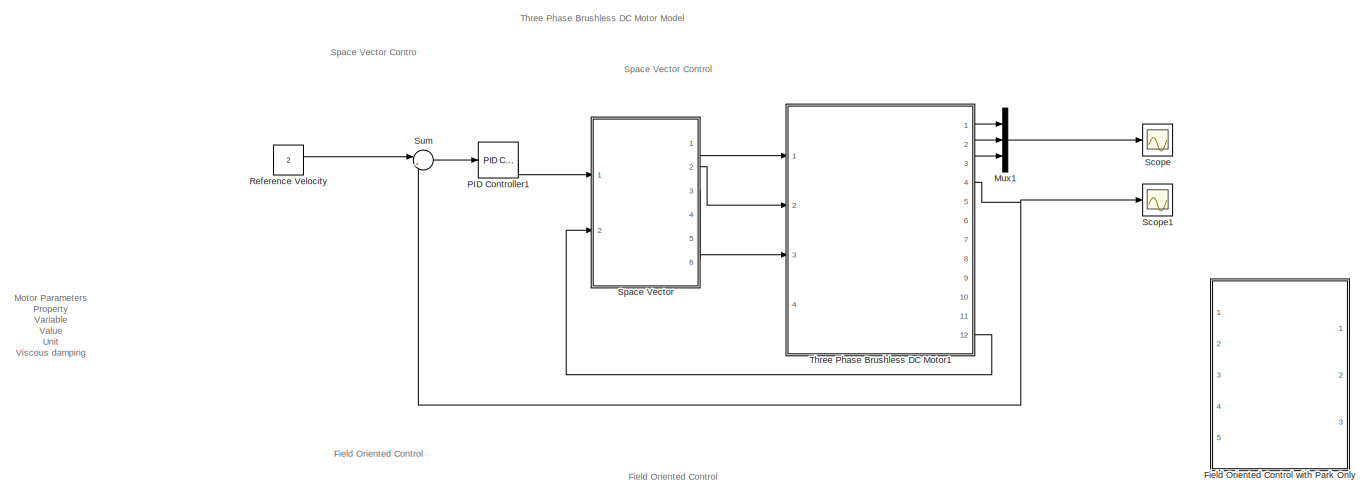
[diagram: root canvas - part 1/2, full width, top band]
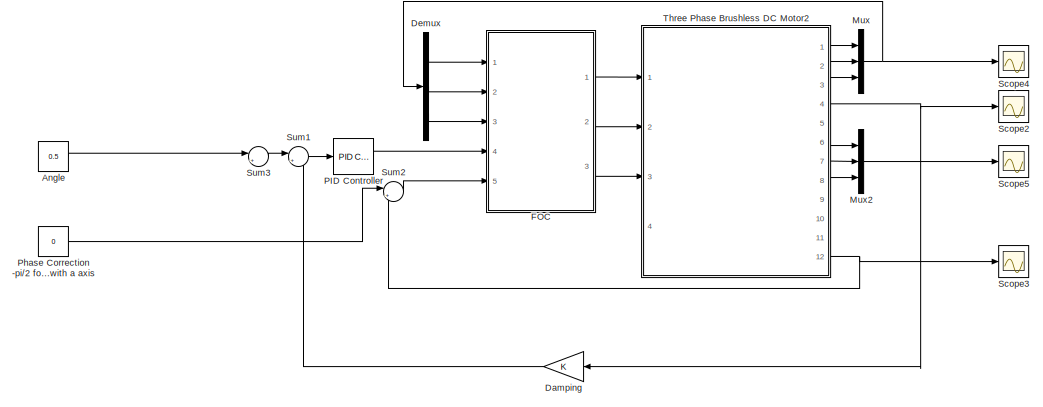
[diagram: root canvas - part 2/2, full width, bottom band]
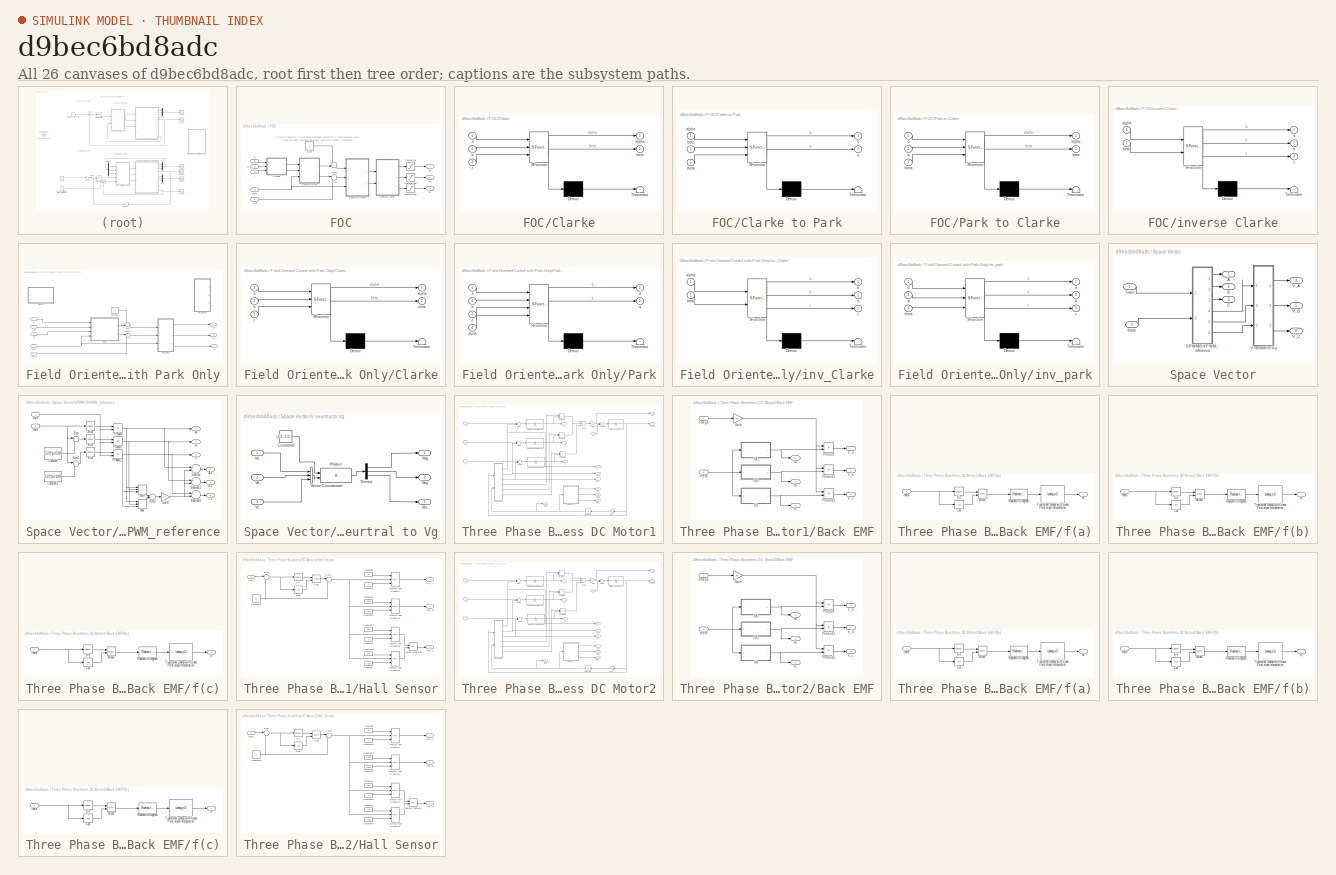
[diagram: thumbnail index - all 26 canvases of the model, root first then tree order]
MODEL slx_d9bec6bd8adc
KIND model
CONFIG AbsTol = auto
CONFIG EnableMultiTasking = off
CONFIG FixedStep = auto
CONFIG MaxStep = auto
CONFIG MinStep = auto
CONFIG RelTol = 1e-3
CONFIG SampleTimeConstraint = Unconstrained
CONFIG Solver = VariableStepAuto
CONFIG SolverName = VariableStepAuto
CONFIG StartTime = 0.0
CONFIG StopTime = 50
WORKSPACE source: MAT-file member
WORKSPACE B = 5.2e-05
BLOCK [Constant] Angle
  Value = 0.5
BLOCK [Gain] Damping
  OutDataTypeStr = Inherit: Inherit via internal rule
  ParamDataTypeStr = Inherit: Inherit via internal rule
  SaturateOnIntegerOverflow = off
BLOCK [Demux] Demux
  DisplayOption = bar
  Outputs = 3
  Ports = [1, 3]
BLOCK [SubSystem] FOC
  Ports = [5, 3]
  RequestExecContextInheritance = off
BLOCK [SubSystem] FOC/Clarke
  ErrorFcn = Stateflow.Translate.translate
  PermitHierarchicalResolution = ExplicitOnly
  Ports = [3, 2]
  RequestExecContextInheritance = off
  SFBlockType = MATLAB Function
  TreatAsAtomicUnit = on
  VariantControl = Variant1
BLOCK [SubSystem] FOC/Clarke to Park
  ErrorFcn = Stateflow.Translate.translate
  PermitHierarchicalResolution = ExplicitOnly
  Ports = [3, 2]
  RequestExecContextInheritance = off
  SFBlockType = MATLAB Function
  TreatAsAtomicUnit = on
BLOCK [Demux] FOC/Clarke to Park/ Demux 
  Outputs = 1
  Ports = [1, 1]
BLOCK [S-Function] FOC/Clarke to Park/ SFunction 
  EnableBusSupport = on
  FunctionName = sf_sfun
  PortCounts = [3 3]
  Ports = [3, 3]
  SFcnIsStateOwnerBlock = off
  SFunctionDeploymentMode = off
  Tag = Stateflow S-Function BLDC_Motor 6
BLOCK [Terminator] FOC/Clarke to Park/ Terminator 
BLOCK [Inport] FOC/Clarke to Park/alpha
  IconDisplay = Port number
BLOCK [Inport] FOC/Clarke to Park/beta
  IconDisplay = Port number
  Port = 2
BLOCK [Outport] FOC/Clarke to Park/d
  IconDisplay = Port number
BLOCK [Outport] FOC/Clarke to Park/q
  IconDisplay = Port number
  Port = 2
BLOCK [Inport] FOC/Clarke to Park/theta
  IconDisplay = Port number
  Port = 3
BLOCK [Demux] FOC/Clarke/ Demux 
  Outputs = 1
  Ports = [1, 1]
BLOCK [S-Function] FOC/Clarke/ SFunction 
  EnableBusSupport = on
  FunctionName = sf_sfun
  PortCounts = [3 3]
  Ports = [3, 3]
  SFcnIsStateOwnerBlock = off
  SFunctionDeploymentMode = off
  Tag = Stateflow S-Function BLDC_Motor 5
BLOCK [Terminator] FOC/Clarke/ Terminator 
BLOCK [Inport] FOC/Clarke/a
  IconDisplay = Port number
BLOCK [Outport] FOC/Clarke/alpha
  IconDisplay = Port number
BLOCK [Inport] FOC/Clarke/b
  IconDisplay = Port number
  Port = 2
BLOCK [Outport] FOC/Clarke/beta
  IconDisplay = Port number
  Port = 2
BLOCK [Inport] FOC/Clarke/c
  IconDisplay = Port number
  Port = 3
BLOCK [SubSystem] FOC/Park to Clarke
  ErrorFcn = Stateflow.Translate.translate
  PermitHierarchicalResolution = ExplicitOnly
  Ports = [3, 2]
  RequestExecContextInheritance = off
  SFBlockType = MATLAB Function
  TreatAsAtomicUnit = on
BLOCK [Demux] FOC/Park to Clarke/ Demux 
  Outputs = 1
  Ports = [1, 1]
BLOCK [S-Function] FOC/Park to Clarke/ SFunction 
  EnableBusSupport = on
  FunctionName = sf_sfun
  PortCounts = [3 3]
  Ports = [3, 3]
  SFcnIsStateOwnerBlock = off
  SFunctionDeploymentMode = off
  Tag = Stateflow S-Function BLDC_Motor 7
BLOCK [Terminator] FOC/Park to Clarke/ Terminator 
BLOCK [Outport] FOC/Park to Clarke/alpha
  IconDisplay = Port number
BLOCK [Outport] FOC/Park to Clarke/beta
  IconDisplay = Port number
  Port = 2
BLOCK [Inport] FOC/Park to Clarke/d
  IconDisplay = Port number
BLOCK [Inport] FOC/Park to Clarke/q
  IconDisplay = Port number
  Port = 2
BLOCK [Inport] FOC/Park to Clarke/theta
  IconDisplay = Port number
  Port = 3
BLOCK [Saturate] FOC/Saturation
  InputPortMap = u0
  LowerLimit = -10
  Ports = [1, 1]
  UpperLimit = 10
BLOCK [Saturate] FOC/Saturation1
  InputPortMap = u0
  LowerLimit = -10
  Ports = [1, 1]
  UpperLimit = 10
BLOCK [Saturate] FOC/Saturation2
  InputPortMap = u0
  LowerLimit = -10
  Ports = [1, 1]
  UpperLimit = 10
BLOCK [Sum] FOC/Sum
  IconShape = round
  InputSameDT = off
  Inputs = |-+
  OutDataTypeStr = Inherit: Inherit via internal rule
  Ports = [2, 1]
  SaturateOnIntegerOverflow = off
BLOCK [Sum] FOC/Sum1
  IconShape = round
  InputSameDT = off
  Inputs = +-|
  OutDataTypeStr = Inherit: Inherit via internal rule
  Ports = [2, 1]
  SaturateOnIntegerOverflow = off
BLOCK [Inport] FOC/a
  IconDisplay = Port number
BLOCK [Inport] FOC/b
  IconDisplay = Port number
  Port = 2
BLOCK [Inport] FOC/c
  IconDisplay = Port number
  Port = 3
BLOCK [Constant] FOC/d_ref
  Value = 0
BLOCK [SubSystem] FOC/inverse Clarke
  ErrorFcn = Stateflow.Translate.translate
  PermitHierarchicalResolution = ExplicitOnly
  Ports = [2, 3]
  RequestExecContextInheritance = off
  SFBlockType = MATLAB Function
  TreatAsAtomicUnit = on
BLOCK [Demux] FOC/inverse Clarke/ Demux 
  Outputs = 1
  Ports = [1, 1]
BLOCK [S-Function] FOC/inverse Clarke/ SFunction 
  EnableBusSupport = on
  FunctionName = sf_sfun
  PortCounts = [2 4]
  Ports = [2, 4]
  SFcnIsStateOwnerBlock = off
  SFunctionDeploymentMode = off
  Tag = Stateflow S-Function BLDC_Motor 8
BLOCK [Terminator] FOC/inverse Clarke/ Terminator 
BLOCK [Outport] FOC/inverse Clarke/a
  IconDisplay = Port number
BLOCK [Inport] FOC/inverse Clarke/alpha
  IconDisplay = Port number
BLOCK [Outport] FOC/inverse Clarke/b
  IconDisplay = Port number
  Port = 2
BLOCK [Inport] FOC/inverse Clarke/beta
  IconDisplay = Port number
  Port = 2
BLOCK [Outport] FOC/inverse Clarke/c
  IconDisplay = Port number
  Port = 3
BLOCK [Inport] FOC/q_ref
  IconDisplay = Port number
  Port = 4
BLOCK [Inport] FOC/theta 
  IconDisplay = Port number
  Port = 5
BLOCK [Outport] FOC/va
  IconDisplay = Port number
BLOCK [Outport] FOC/vb
  IconDisplay = Port number
  Port = 2
BLOCK [Outport] FOC/vc
  IconDisplay = Port number
  Port = 3
BLOCK [SubSystem] Field Oriented Control with Park Only
  Commented = on
  Ports = [5, 3]
  RequestExecContextInheritance = off
BLOCK [SubSystem] Field Oriented Control with Park Only/Clarke
  Commented = on
  ErrorFcn = Stateflow.Translate.translate
  PermitHierarchicalResolution = ExplicitOnly
  Ports = [3, 2]
  RequestExecContextInheritance = off
  SFBlockType = MATLAB Function
  TreatAsAtomicUnit = on
BLOCK [Demux] Field Oriented Control with Park Only/Clarke/ Demux 
  Outputs = 1
  Ports = [1, 1]
BLOCK [S-Function] Field Oriented Control with Park Only/Clarke/ SFunction 
  EnableBusSupport = on
  FunctionName = sf_sfun
  PortCounts = [3 3]
  Ports = [3, 3]
  SFcnIsStateOwnerBlock = off
  SFunctionDeploymentMode = off
  Tag = Stateflow S-Function BLDC_Motor 2
BLOCK [Terminator] Field Oriented Control with Park Only/Clarke/ Terminator 
BLOCK [Inport] Field Oriented Control with Park Only/Clarke/a
  IconDisplay = Port number
BLOCK [Outport] Field Oriented Control with Park Only/Clarke/alpha
  IconDisplay = Port number
BLOCK [Inport] Field Oriented Control with Park Only/Clarke/b
  IconDisplay = Port number
  Port = 2
BLOCK [Outport] Field Oriented Control with Park Only/Clarke/beta
  IconDisplay = Port number
  Port = 2
BLOCK [Inport] Field Oriented Control with Park Only/Clarke/c
  IconDisplay = Port number
  Port = 3
BLOCK [Constant] Field Oriented Control with Park Only/Constant
  Value = 0
BLOCK [SubSystem] Field Oriented Control with Park Only/Park
  ErrorFcn = Stateflow.Translate.translate
  PermitHierarchicalResolution = ExplicitOnly
  Ports = [4, 2]
  RequestExecContextInheritance = off
  SFBlockType = MATLAB Function
  TreatAsAtomicUnit = on
BLOCK [Demux] Field Oriented Control with Park Only/Park/ Demux 
  Outputs = 1
  Ports = [1, 1]
BLOCK [S-Function] Field Oriented Control with Park Only/Park/ SFunction 
  EnableBusSupport = on
  FunctionName = sf_sfun
  PortCounts = [4 3]
  Ports = [4, 3]
  SFcnIsStateOwnerBlock = off
  SFunctionDeploymentMode = off
  Tag = Stateflow S-Function BLDC_Motor 3
BLOCK [Terminator] Field Oriented Control with Park Only/Park/ Terminator 
BLOCK [Inport] Field Oriented Control with Park Only/Park/a
  IconDisplay = Port number
BLOCK [Inport] Field Oriented Control with Park Only/Park/b
  IconDisplay = Port number
  Port = 2
BLOCK [Inport] Field Oriented Control with Park Only/Park/c
  IconDisplay = Port number
  Port = 3
BLOCK [Outport] Field Oriented Control with Park Only/Park/d
  IconDisplay = Port number
BLOCK [Outport] Field Oriented Control with Park Only/Park/q
  IconDisplay = Port number
  Port = 2
BLOCK [Inport] Field Oriented Control with Park Only/Park/theta
  IconDisplay = Port number
  Port = 4
BLOCK [Sum] Field Oriented Control with Park Only/Sum
  IconShape = round
  InputSameDT = off
  Inputs = +-|
  OutDataTypeStr = Inherit: Inherit via internal rule
  Ports = [2, 1]
  SaturateOnIntegerOverflow = off
BLOCK [Sum] Field Oriented Control with Park Only/Sum1
  IconShape = round
  InputSameDT = off
  Inputs = |-+
  OutDataTypeStr = Inherit: Inherit via internal rule
  Ports = [2, 1]
  SaturateOnIntegerOverflow = off
BLOCK [Inport] Field Oriented Control with Park Only/i_a
  IconDisplay = Port number
BLOCK [Inport] Field Oriented Control with Park Only/i_b
  IconDisplay = Port number
  Port = 2
BLOCK [Inport] Field Oriented Control with Park Only/i_c
  IconDisplay = Port number
  Port = 3
BLOCK [SubSystem] Field Oriented Control with Park Only/inv_Clarke
  Commented = on
  ErrorFcn = Stateflow.Translate.translate
  PermitHierarchicalResolution = ExplicitOnly
  Ports = [2, 3]
  RequestExecContextInheritance = off
  SFBlockType = MATLAB Function
  TreatAsAtomicUnit = on
BLOCK [Demux] Field Oriented Control with Park Only/inv_Clarke/ Demux 
  Outputs = 1
  Ports = [1, 1]
BLOCK [S-Function] Field Oriented Control with Park Only/inv_Clarke/ SFunction 
  EnableBusSupport = on
  FunctionName = sf_sfun
  PortCounts = [2 4]
  Ports = [2, 4]
  SFcnIsStateOwnerBlock = off
  SFunctionDeploymentMode = off
  Tag = Stateflow S-Function BLDC_Motor 1
BLOCK [Terminator] Field Oriented Control with Park Only/inv_Clarke/ Terminator 
BLOCK [Outport] Field Oriented Control with Park Only/inv_Clarke/a
  IconDisplay = Port number
BLOCK [Inport] Field Oriented Control with Park Only/inv_Clarke/alpha
  IconDisplay = Port number
BLOCK [Outport] Field Oriented Control with Park Only/inv_Clarke/b
  IconDisplay = Port number
  Port = 2
BLOCK [Inport] Field Oriented Control with Park Only/inv_Clarke/beta
  IconDisplay = Port number
  Port = 2
BLOCK [Outport] Field Oriented Control with Park Only/inv_Clarke/c
  IconDisplay = Port number
  Port = 3
BLOCK [SubSystem] Field Oriented Control with Park Only/inv_park
  ErrorFcn = Stateflow.Translate.translate
  PermitHierarchicalResolution = ExplicitOnly
  Ports = [3, 3]
  RequestExecContextInheritance = off
  SFBlockType = MATLAB Function
  TreatAsAtomicUnit = on
BLOCK [Demux] Field Oriented Control with Park Only/inv_park/ Demux 
  Outputs = 1
  Ports = [1, 1]
BLOCK [S-Function] Field Oriented Control with Park Only/inv_park/ SFunction 
  EnableBusSupport = on
  FunctionName = sf_sfun
  PortCounts = [3 4]
  Ports = [3, 4]
  SFcnIsStateOwnerBlock = off
  SFunctionDeploymentMode = off
  Tag = Stateflow S-Function BLDC_Motor 4
BLOCK [Terminator] Field Oriented Control with Park Only/inv_park/ Terminator 
BLOCK [Outport] Field Oriented Control with Park Only/inv_park/a
  IconDisplay = Port number
BLOCK [Outport] Field Oriented Control with Park Only/inv_park/b
  IconDisplay = Port number
  Port = 2
BLOCK [Outport] Field Oriented Control with Park Only/inv_park/c
  IconDisplay = Port number
  Port = 3
BLOCK [Inport] Field Oriented Control with Park Only/inv_park/d
  IconDisplay = Port number
BLOCK [Inport] Field Oriented Control with Park Only/inv_park/q
  IconDisplay = Port number
  Port = 2
BLOCK [Inport] Field Oriented Control with Park Only/inv_park/theta
  IconDisplay = Port number
  Port = 3
BLOCK [Inport] Field Oriented Control with Park Only/ref_q
  IconDisplay = Port number
  Port = 4
BLOCK [Inport] Field Oriented Control with Park Only/theta
  IconDisplay = Port number
  Port = 5
BLOCK [Outport] Field Oriented Control with Park Only/v_a
  IconDisplay = Port number
BLOCK [Outport] Field Oriented Control with Park Only/v_b
  IconDisplay = Port number
  Port = 2
BLOCK [Outport] Field Oriented Control with Park Only/v_c
  IconDisplay = Port number
  Port = 3
BLOCK [Mux] Mux
  DisplayOption = bar
  Inputs = 3
  Ports = [3, 1]
BLOCK [Mux] Mux1
  DisplayOption = bar
  Inputs = 3
  Ports = [3, 1]
BLOCK [Mux] Mux2
  DisplayOption = bar
  Inputs = 3
  Ports = [3, 1]
BLOCK [Reference] PID Controller  REF=simulink/Continuous/PID Controller
  Ports = [1, 1]
  SourceBlock = simulink/Continuous/PID Controller
  SourceProductBaseCode = SL
  SourceProductName = Simulink
  SourceType = PID 1dof
BLOCK [Reference] PID Controller1  REF=simulink/Continuous/PID Controller
  Ports = [1, 1]
  SourceBlock = simulink/Continuous/PID Controller
  SourceProductBaseCode = SL
  SourceProductName = Simulink
  SourceType = PID 1dof
BLOCK [Constant] Phase Correction -pi//2 for d aligend with a axis
  Value = 0
BLOCK [Constant] Reference Velocity 
  Value = 2
BLOCK [Scope] Scope
  Floating = off
  NumInputPorts = 1
  Ports = [1]
  ScopeSpecificationString = Simulink.scopes.TimeScopeBlockCfg('CurrentConfiguration', extmgr.ConfigurationSet(extmgr.Configuration('Core','General UI',true),extmgr.Configuration('Core','Source UI',true),extmgr.Configuration('Sources','WiredSimulink',true,'DataLoggingVariableName','ScopeData1'),extmgr.Configuration('Visuals','Time Domain',true,'SerializedDisplays',{struct('MinYLimReal','-165.63872','MaxYLimReal','164.03449','...<+1526ch>
BLOCK [Scope] Scope1
  Floating = off
  NumInputPorts = 1
  Ports = [1]
  ScopeSpecificationString = Simulink.scopes.TimeScopeBlockCfg('CurrentConfiguration', extmgr.ConfigurationSet(extmgr.Configuration('Core','General UI',true),extmgr.Configuration('Core','Source UI',true),extmgr.Configuration('Sources','WiredSimulink',true),extmgr.Configuration('Visuals','Time Domain',true,'SerializedDisplays',{struct('MinYLimReal','-0.2494','MaxYLimReal','2.24464','YLabelReal','','MinYLimMag','0.00000','MaxYL...<+1405ch>
BLOCK [Scope] Scope2
  Floating = off
  NumInputPorts = 1
  Ports = [1]
  ScopeSpecificationString = Simulink.scopes.TimeScopeBlockCfg('CurrentConfiguration', extmgr.ConfigurationSet(extmgr.Configuration('Core','General UI',true),extmgr.Configuration('Core','Source UI',true),extmgr.Configuration('Sources','WiredSimulink',true,'DataLoggingVariableName','ScopeData1'),extmgr.Configuration('Visuals','Time Domain',true,'SerializedDisplays',{struct('MinYLimReal','-0.00125','MaxYLimReal','0.01124','YLab...<+1465ch>
BLOCK [Scope] Scope3
  Floating = off
  NumInputPorts = 1
  Ports = [1]
  ScopeSpecificationString = Simulink.scopes.TimeScopeBlockCfg('CurrentConfiguration', extmgr.ConfigurationSet(extmgr.Configuration('Core','General UI',true),extmgr.Configuration('Core','Source UI',true),extmgr.Configuration('Sources','WiredSimulink',true,'DataLoggingVariableName','ScopeData2'),extmgr.Configuration('Visuals','Time Domain',true,'SerializedDisplays',{struct('MinYLimReal','-0.0019','MaxYLimReal','0.01706','YLabe...<+1420ch>
BLOCK [Scope] Scope4
  Floating = off
  NumInputPorts = 1
  Ports = [1]
  ScopeSpecificationString = Simulink.scopes.TimeScopeBlockCfg('CurrentConfiguration', extmgr.ConfigurationSet(extmgr.Configuration('Core','General UI',true),extmgr.Configuration('Core','Source UI',true),extmgr.Configuration('Sources','WiredSimulink',true,'DataLoggingVariableName','ScopeData3'),extmgr.Configuration('Visuals','Time Domain',true,'SerializedDisplays',{struct('MinYLimReal','-1.428','MaxYLimReal','1.42832','YLabel...<+1533ch>
BLOCK [Scope] Scope5
  Floating = off
  NumInputPorts = 1
  Ports = [1]
  ScopeSpecificationString = Simulink.scopes.TimeScopeBlockCfg('CurrentConfiguration', extmgr.ConfigurationSet(extmgr.Configuration('Core','General UI',true),extmgr.Configuration('Core','Source UI',true),extmgr.Configuration('Sources','WiredSimulink',true,'DataLoggingVariableName','ScopeData1'),extmgr.Configuration('Visuals','Time Domain',true,'SerializedDisplays',{struct('MinYLimReal','-0.00442','MaxYLimReal','0.00442','YLab...<+1537ch>
BLOCK [SubSystem] Space Vector
  Ports = [2, 6]
  RequestExecContextInheritance = off
BLOCK [Outport] Space Vector/A
  IconDisplay = Port number
BLOCK [Outport] Space Vector/B
  IconDisplay = Port number
  Port = 2
BLOCK [Outport] Space Vector/C
  IconDisplay = Port number
  Port = 3
BLOCK [Inport] Space Vector/Gain
  IconDisplay = Port number
BLOCK [SubSystem] Space Vector/SPWM//SVPWM_reference
  Ports = [2, 6]
  RequestExecContextInheritance = off
BLOCK [Outport] Space Vector/SPWM//SVPWM_reference/A
  IconDisplay = Port number
BLOCK [Outport] Space Vector/SPWM//SVPWM_reference/A1
  IconDisplay = Port number
  Port = 4
BLOCK [Outport] Space Vector/SPWM//SVPWM_reference/B
  IconDisplay = Port number
  Port = 2
BLOCK [Outport] Space Vector/SPWM//SVPWM_reference/B1
  IconDisplay = Port number
  Port = 5
BLOCK [Outport] Space Vector/SPWM//SVPWM_reference/C
  IconDisplay = Port number
  Port = 3
BLOCK [Outport] Space Vector/SPWM//SVPWM_reference/C1
  IconDisplay = Port number
  Port = 6
BLOCK [Constant] Space Vector/SPWM//SVPWM_reference/Constant
  Value = -120*pi/180
BLOCK [Constant] Space Vector/SPWM//SVPWM_reference/Constant1
  Value = 120*pi/180
BLOCK [Inport] Space Vector/SPWM//SVPWM_reference/Gain
  IconDisplay = Port number
BLOCK [Gain] Space Vector/SPWM//SVPWM_reference/Gain1
  Gain = 1/2
  OutDataTypeStr = Inherit: Inherit via internal rule
  ParamDataTypeStr = Inherit: Inherit via internal rule
  SaturateOnIntegerOverflow = off
BLOCK [MinMax] Space Vector/SPWM//SVPWM_reference/Max
  Function = max
  InputSameDT = off
  Inputs = 3
  Ports = [3, 1]
  SaturateOnIntegerOverflow = off
BLOCK [MinMax] Space Vector/SPWM//SVPWM_reference/Min
  InputSameDT = off
  Inputs = 3
  Ports = [3, 1]
  SaturateOnIntegerOverflow = off
BLOCK [Product] Space Vector/SPWM//SVPWM_reference/Product
  InputSameDT = off
  OutDataTypeStr = Inherit: Inherit via internal rule
  Ports = [2, 1]
  RndMeth = Floor
  SaturateOnIntegerOverflow = off
BLOCK [Product] Space Vector/SPWM//SVPWM_reference/Product1
  InputSameDT = off
  OutDataTypeStr = Inherit: Inherit via internal rule
  Ports = [2, 1]
  RndMeth = Floor
  SaturateOnIntegerOverflow = off
BLOCK [Product] Space Vector/SPWM//SVPWM_reference/Product2
  InputSameDT = off
  OutDataTypeStr = Inherit: Inherit via internal rule
  Ports = [2, 1]
  RndMeth = Floor
  SaturateOnIntegerOverflow = off
BLOCK [Trigonometry] Space Vector/SPWM//SVPWM_reference/Sin1
  Ports = [1, 1]
BLOCK [Trigonometry] Space Vector/SPWM//SVPWM_reference/Sin2
  Ports = [1, 1]
BLOCK [Trigonometry] Space Vector/SPWM//SVPWM_reference/Sin3
  Ports = [1, 1]
BLOCK [Sum] Space Vector/SPWM//SVPWM_reference/Subtract
  InputSameDT = off
  Inputs = +-
  OutDataTypeStr = Inherit: Inherit via internal rule
  Ports = [2, 1]
  SaturateOnIntegerOverflow = off
BLOCK [Sum] Space Vector/SPWM//SVPWM_reference/Subtract1
  InputSameDT = off
  Inputs = +-
  OutDataTypeStr = Inherit: Inherit via internal rule
  Ports = [2, 1]
  SaturateOnIntegerOverflow = off
BLOCK [Sum] Space Vector/SPWM//SVPWM_reference/Subtract2
  InputSameDT = off
  Inputs = +-
  OutDataTypeStr = Inherit: Inherit via internal rule
  Ports = [2, 1]
  SaturateOnIntegerOverflow = off
BLOCK [Sum] Space Vector/SPWM//SVPWM_reference/Sum
  IconShape = round
  InputSameDT = off
  Inputs = |++
  OutDataTypeStr = Inherit: Inherit via internal rule
  Ports = [2, 1]
  SaturateOnIntegerOverflow = off
BLOCK [Sum] Space Vector/SPWM//SVPWM_reference/Sum1
  IconShape = round
  InputSameDT = off
  Inputs = |++
  OutDataTypeStr = Inherit: Inherit via internal rule
  Ports = [2, 1]
  SaturateOnIntegerOverflow = off
BLOCK [Sum] Space Vector/SPWM//SVPWM_reference/Sum2
  IconShape = round
  InputSameDT = off
  OutDataTypeStr = Inherit: Inherit via internal rule
  Ports = [2, 1]
  SaturateOnIntegerOverflow = off
BLOCK [Inport] Space Vector/SPWM//SVPWM_reference/theta
  IconDisplay = Port number
  Port = 2
BLOCK [SubSystem] Space Vector/V neurtral to Vg
  Ports = [3, 3]
  RequestExecContextInheritance = off
BLOCK [Constant] Space Vector/V neurtral to Vg/Constant2
  Value = [2/3,-1/3,1/3;-1/3,2/3,-1/3;-1/3,-1/3,2/3];
BLOCK [Demux] Space Vector/V neurtral to Vg/Demux
  DisplayOption = bar
  Outputs = 3
  Ports = [1, 3]
BLOCK [Product] Space Vector/V neurtral to Vg/Product
  InputSameDT = off
  Multiplication = Matrix(*)
  OutDataTypeStr = Inherit: Inherit via internal rule
  Ports = [2, 1]
  RndMeth = Floor
  SaturateOnIntegerOverflow = off
BLOCK [Inport] Space Vector/V neurtral to Vg/Va
  IconDisplay = Port number
BLOCK [Outport] Space Vector/V neurtral to Vg/Vag
  IconDisplay = Port number
BLOCK [Inport] Space Vector/V neurtral to Vg/Vb
  IconDisplay = Port number
  Port = 2
BLOCK [Outport] Space Vector/V neurtral to Vg/Vbc
  IconDisplay = Port number
  Port = 3
BLOCK [Outport] Space Vector/V neurtral to Vg/Vbg
  IconDisplay = Port number
  Port = 2
BLOCK [Inport] Space Vector/V neurtral to Vg/Vc
  IconDisplay = Port number
  Port = 3
BLOCK [Concatenate] Space Vector/V neurtral to Vg/Vector Concatenate
  NumInputs = 3
  Ports = [3, 1]
BLOCK [Outport] Space Vector/V_A
  IconDisplay = Port number
  Port = 4
BLOCK [Outport] Space Vector/V_B
  IconDisplay = Port number
  Port = 5
BLOCK [Outport] Space Vector/V_C
  IconDisplay = Port number
  Port = 6
BLOCK [Inport] Space Vector/theta
  IconDisplay = Port number
  Port = 2
BLOCK [Sum] Sum
  IconShape = round
  InputSameDT = off
  Inputs = |+-
  OutDataTypeStr = Inherit: Inherit via internal rule
  Ports = [2, 1]
  SaturateOnIntegerOverflow = off
BLOCK [Sum] Sum1
  IconShape = round
  InputSameDT = off
  Inputs = |+-
  OutDataTypeStr = Inherit: Inherit via internal rule
  Ports = [2, 1]
  SaturateOnIntegerOverflow = off
BLOCK [Sum] Sum2
  IconShape = round
  InputSameDT = off
  Inputs = |++
  OutDataTypeStr = Inherit: Inherit via internal rule
  Ports = [2, 1]
  SaturateOnIntegerOverflow = off
BLOCK [Sum] Sum3
  IconShape = round
  InputSameDT = off
  Inputs = |+-
  OutDataTypeStr = Inherit: Inherit via internal rule
  Ports = [2, 1]
  SaturateOnIntegerOverflow = off
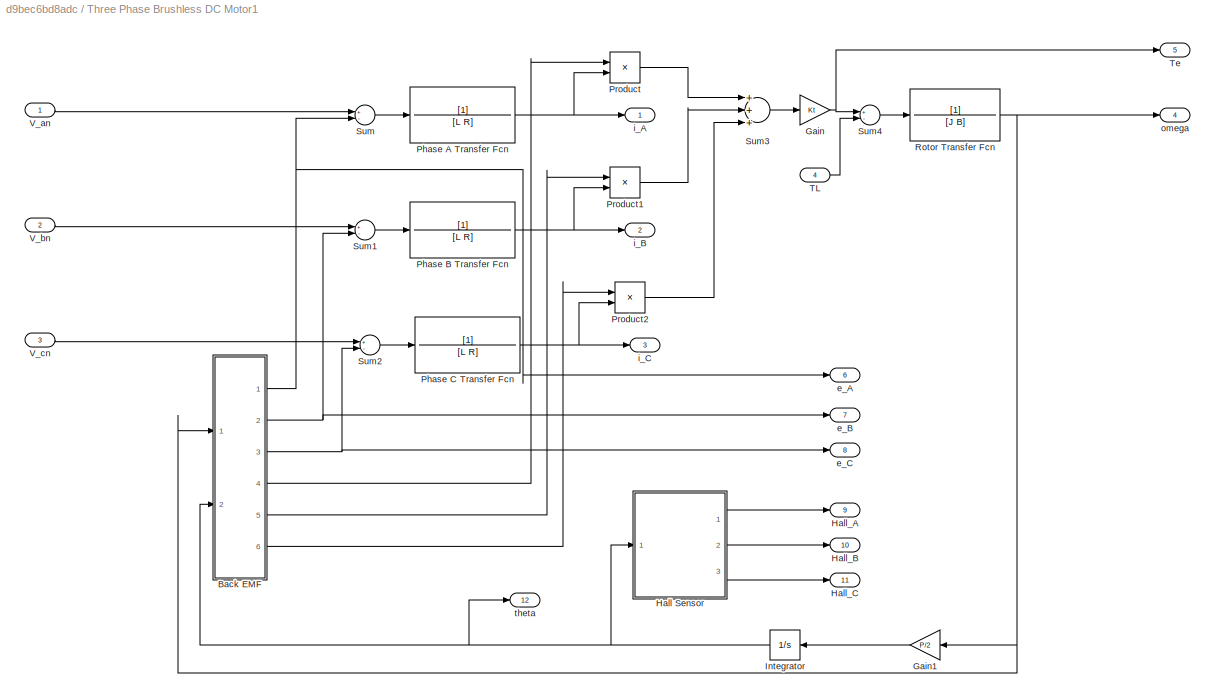
BLOCK [SubSystem] Three Phase Brushless DC Motor1
  Ports = [4, 12]
  RequestExecContextInheritance = off
BLOCK [SubSystem] Three Phase Brushless DC Motor1/Back EMF
  Ports = [2, 6]
  RequestExecContextInheritance = off
BLOCK [Gain] Three Phase Brushless DC Motor1/Back EMF/Gain
  Gain = Ke
  OutDataTypeStr = Inherit: Inherit via internal rule
  ParamDataTypeStr = Inherit: Inherit via internal rule
  SaturateOnIntegerOverflow = off
BLOCK [Product] Three Phase Brushless DC Motor1/Back EMF/Product
  InputSameDT = off
  OutDataTypeStr = Inherit: Inherit via internal rule
  Ports = [2, 1]
  RndMeth = Floor
  SaturateOnIntegerOverflow = off
BLOCK [Product] Three Phase Brushless DC Motor1/Back EMF/Product1
  InputSameDT = off
  OutDataTypeStr = Inherit: Inherit via internal rule
  Ports = [2, 1]
  RndMeth = Floor
  SaturateOnIntegerOverflow = off
BLOCK [Product] Three Phase Brushless DC Motor1/Back EMF/Product2
  InputSameDT = off
  OutDataTypeStr = Inherit: Inherit via internal rule
  Ports = [2, 1]
  RndMeth = Floor
  SaturateOnIntegerOverflow = off
BLOCK [Outport] Three Phase Brushless DC Motor1/Back EMF/e_a
  IconDisplay = Port number
BLOCK [Outport] Three Phase Brushless DC Motor1/Back EMF/e_b
  IconDisplay = Port number
  Port = 2
BLOCK [Outport] Three Phase Brushless DC Motor1/Back EMF/e_c
  IconDisplay = Port number
  Port = 3
BLOCK [SubSystem] Three Phase Brushless DC Motor1/Back EMF/f(a)
  Ports = [1, 1]
  RequestExecContextInheritance = off
BLOCK [Trigonometry] Three Phase Brushless DC Motor1/Back EMF/f(a)/Atan2
  Operator = atan2
  Ports = [2, 1]
BLOCK [Trigonometry] Three Phase Brushless DC Motor1/Back EMF/f(a)/Cos
  Operator = cos
  Ports = [1, 1]
BLOCK [Reference] Three Phase Brushless DC Motor1/Back EMF/f(a)/Radians to Degrees  REF=simulink_extras/Transformations/Radians
to Degrees
  Ports = [1, 1]
  SourceBlock = simulink_extras/Transformations/Radians\nto Degrees
  SourceProductBaseCode = SL
  SourceProductName = Simulink
  SourceType = RadiansToDegrees
BLOCK [Trigonometry] Three Phase Brushless DC Motor1/Back EMF/f(a)/Sin
  Ports = [1, 1]
BLOCK [Lookup_n-D] Three Phase Brushless DC Motor1/Back EMF/f(a)/Trapizoidal Lookup with Linear Point-slope Interpolation
  BreakpointsForDimension1 = [-180,  -120,   -60,     0,    60,   120,   180]
  InternalRulePriority = Speed
  NumberOfTableDimensions = 1
  Ports = [1, 1]
  RndMeth = Simplest
  Table = [-1,-1,-1,1,1,1,-1]
BLOCK [Outport] Three Phase Brushless DC Motor1/Back EMF/f(a)/fa
  IconDisplay = Port number
BLOCK [Inport] Three Phase Brushless DC Motor1/Back EMF/f(a)/theta
  IconDisplay = Port number
BLOCK [SubSystem] Three Phase Brushless DC Motor1/Back EMF/f(b)
  Ports = [1, 1]
  RequestExecContextInheritance = off
BLOCK [Trigonometry] Three Phase Brushless DC Motor1/Back EMF/f(b)/Atan2
  Operator = atan2
  Ports = [2, 1]
BLOCK [Trigonometry] Three Phase Brushless DC Motor1/Back EMF/f(b)/Cos
  Operator = cos
  Ports = [1, 1]
BLOCK [Reference] Three Phase Brushless DC Motor1/Back EMF/f(b)/Radians to Degrees  REF=simulink_extras/Transformations/Radians
to Degrees
  Ports = [1, 1]
  SourceBlock = simulink_extras/Transformations/Radians\nto Degrees
  SourceProductBaseCode = SL
  SourceProductName = Simulink
  SourceType = RadiansToDegrees
BLOCK [Trigonometry] Three Phase Brushless DC Motor1/Back EMF/f(b)/Sin
  Ports = [1, 1]
BLOCK [Lookup_n-D] Three Phase Brushless DC Motor1/Back EMF/f(b)/Trapizoidal Lookup with Linear Point-slope Interpolation
  BreakpointsForDimension1 = [-180,  -120,   -60,     0,    60,   120,   180]
  InternalRulePriority = Speed
  NumberOfTableDimensions = 1
  Ports = [1, 1]
  RndMeth = Simplest
  Table = [1,1,-1,-1,-1,1,1]
BLOCK [Outport] Three Phase Brushless DC Motor1/Back EMF/f(b)/fb
  IconDisplay = Port number
BLOCK [Inport] Three Phase Brushless DC Motor1/Back EMF/f(b)/theta
  IconDisplay = Port number
BLOCK [SubSystem] Three Phase Brushless DC Motor1/Back EMF/f(c)
  Ports = [1, 1]
  RequestExecContextInheritance = off
BLOCK [Trigonometry] Three Phase Brushless DC Motor1/Back EMF/f(c)/Atan2
  Operator = atan2
  Ports = [2, 1]
BLOCK [Trigonometry] Three Phase Brushless DC Motor1/Back EMF/f(c)/Cos
  Operator = cos
  Ports = [1, 1]
BLOCK [Reference] Three Phase Brushless DC Motor1/Back EMF/f(c)/Radians to Degrees  REF=simulink_extras/Transformations/Radians
to Degrees
  Ports = [1, 1]
  SourceBlock = simulink_extras/Transformations/Radians\nto Degrees
  SourceProductBaseCode = SL
  SourceProductName = Simulink
  SourceType = RadiansToDegrees
BLOCK [Trigonometry] Three Phase Brushless DC Motor1/Back EMF/f(c)/Sin
  Ports = [1, 1]
BLOCK [Lookup_n-D] Three Phase Brushless DC Motor1/Back EMF/f(c)/Trapizoidal Lookup with Linear Point-slope Interpolation
  BreakpointsForDimension1 = [-180,  -120,   -60,     0,    60,   120,   180]
  InternalRulePriority = Speed
  NumberOfTableDimensions = 1
  Ports = [1, 1]
  RndMeth = Simplest
  Table = [-1,1,1,1,-1,-1,-1]
BLOCK [Outport] Three Phase Brushless DC Motor1/Back EMF/f(c)/fc
  IconDisplay = Port number
BLOCK [Inport] Three Phase Brushless DC Motor1/Back EMF/f(c)/theta
  IconDisplay = Port number
BLOCK [Outport] Three Phase Brushless DC Motor1/Back EMF/fa
  IconDisplay = Port number
  Port = 4
BLOCK [Outport] Three Phase Brushless DC Motor1/Back EMF/fb
  IconDisplay = Port number
  Port = 5
BLOCK [Outport] Three Phase Brushless DC Motor1/Back EMF/fc
  IconDisplay = Port number
  Port = 6
BLOCK [Inport] Three Phase Brushless DC Motor1/Back EMF/omega
  IconDisplay = Port number
BLOCK [Inport] Three Phase Brushless DC Motor1/Back EMF/theta
  IconDisplay = Port number
  Port = 2
BLOCK [Gain] Three Phase Brushless DC Motor1/Gain
  Gain = Kt
  OutDataTypeStr = Inherit: Inherit via internal rule
  ParamDataTypeStr = Inherit: Inherit via internal rule
  SaturateOnIntegerOverflow = off
BLOCK [Gain] Three Phase Brushless DC Motor1/Gain1
  Gain = P/2
  OutDataTypeStr = Inherit: Inherit via internal rule
  ParamDataTypeStr = Inherit: Inherit via internal rule
  SaturateOnIntegerOverflow = off
BLOCK [SubSystem] Three Phase Brushless DC Motor1/Hall Sensor
  Ports = [1, 3]
  RequestExecContextInheritance = off
BLOCK [Trigonometry] Three Phase Brushless DC Motor1/Hall Sensor/Atan2
  Operator = atan2
  Ports = [2, 1]
BLOCK [Constant] Three Phase Brushless DC Motor1/Hall Sensor/Constant
  Value = pi
BLOCK [Constant] Three Phase Brushless DC Motor1/Hall Sensor/Constant1
  Value = 0
BLOCK [Constant] Three Phase Brushless DC Motor1/Hall Sensor/Constant2
  Value = 5*pi/3
BLOCK [Constant] Three Phase Brushless DC Motor1/Hall Sensor/Constant3
  Value = 2*pi/3
BLOCK [Constant] Three Phase Brushless DC Motor1/Hall Sensor/Constant4
  Value = pi/3
BLOCK [Constant] Three Phase Brushless DC Motor1/Hall Sensor/Constant5
  Value = 0
BLOCK [Constant] Three Phase Brushless DC Motor1/Hall Sensor/Constant6
  Value = 2*pi
BLOCK [Constant] Three Phase Brushless DC Motor1/Hall Sensor/Constant7
  Value = 4*pi/3
BLOCK [Constant] Three Phase Brushless DC Motor1/Hall Sensor/Constant8
  Value = pi
BLOCK [Trigonometry] Three Phase Brushless DC Motor1/Hall Sensor/Cos
  Operator = cos
  Ports = [1, 1]
BLOCK [Outport] Three Phase Brushless DC Motor1/Hall Sensor/Hall_A
  IconDisplay = Port number
BLOCK [Outport] Three Phase Brushless DC Motor1/Hall Sensor/Hall_B
  IconDisplay = Port number
  Port = 2
BLOCK [Outport] Three Phase Brushless DC Motor1/Hall Sensor/Hall_C
  IconDisplay = Port number
  Port = 3
BLOCK [Reference] Three Phase Brushless DC Motor1/Hall Sensor/Interval Test Dynamic  REF=simulink/Logic and Bit
Operations/Interval Test
Dynamic
  Ports = [3, 1]
  SourceBlock = simulink/Logic and Bit\nOperations/Interval Test\nDynamic
  SourceProductBaseCode = SL
  SourceProductName = Simulink
  SourceType = Interval Test Dynamic
BLOCK [Reference] Three Phase Brushless DC Motor1/Hall Sensor/Interval Test Dynamic1  REF=simulink/Logic and Bit
Operations/Interval Test
Dynamic
  Ports = [3, 1]
  SourceBlock = simulink/Logic and Bit\nOperations/Interval Test\nDynamic
  SourceProductBaseCode = SL
  SourceProductName = Simulink
  SourceType = Interval Test Dynamic
BLOCK [Reference] Three Phase Brushless DC Motor1/Hall Sensor/Interval Test Dynamic2  REF=simulink/Logic and Bit
Operations/Interval Test
Dynamic
  Ports = [3, 1]
  SourceBlock = simulink/Logic and Bit\nOperations/Interval Test\nDynamic
  SourceProductBaseCode = SL
  SourceProductName = Simulink
  SourceType = Interval Test Dynamic
BLOCK [Reference] Three Phase Brushless DC Motor1/Hall Sensor/Interval Test Dynamic3  REF=simulink/Logic and Bit
Operations/Interval Test
Dynamic
  Ports = [3, 1]
  SourceBlock = simulink/Logic and Bit\nOperations/Interval Test\nDynamic
  SourceProductBaseCode = SL
  SourceProductName = Simulink
  SourceType = Interval Test Dynamic
BLOCK [Logic] Three Phase Brushless DC Motor1/Hall Sensor/Logical Operator
  AllPortsSameDT = off
  Operator = OR
  OutDataTypeStr = boolean
  Ports = [2, 1]
BLOCK [Trigonometry] Three Phase Brushless DC Motor1/Hall Sensor/Sin
  Ports = [1, 1]
BLOCK [Sum] Three Phase Brushless DC Motor1/Hall Sensor/Sum
  IconShape = round
  InputSameDT = off
  Inputs = |+-
  OutDataTypeStr = Inherit: Inherit via internal rule
  Ports = [2, 1]
  SaturateOnIntegerOverflow = off
BLOCK [Sum] Three Phase Brushless DC Motor1/Hall Sensor/Sum1
  IconShape = round
  InputSameDT = off
  Inputs = |++
  OutDataTypeStr = Inherit: Inherit via internal rule
  Ports = [2, 1]
  SaturateOnIntegerOverflow = off
BLOCK [Inport] Three Phase Brushless DC Motor1/Hall Sensor/theta
  IconDisplay = Port number
BLOCK [Outport] Three Phase Brushless DC Motor1/Hall_A
  IconDisplay = Port number
  Port = 9
BLOCK [Outport] Three Phase Brushless DC Motor1/Hall_B
  IconDisplay = Port number
  Port = 10
BLOCK [Outport] Three Phase Brushless DC Motor1/Hall_C
  IconDisplay = Port number
  Port = 11
BLOCK [Integrator] Three Phase Brushless DC Motor1/Integrator
  Ports = [1, 1]
BLOCK [TransferFcn] Three Phase Brushless DC Motor1/Phase A Transfer Fcn
  Denominator = [L R]
BLOCK [TransferFcn] Three Phase Brushless DC Motor1/Phase B Transfer Fcn
  Denominator = [L R]
BLOCK [TransferFcn] Three Phase Brushless DC Motor1/Phase C Transfer Fcn
  Denominator = [L R]
BLOCK [Product] Three Phase Brushless DC Motor1/Product
  InputSameDT = off
  OutDataTypeStr = Inherit: Inherit via internal rule
  Ports = [2, 1]
  RndMeth = Floor
  SaturateOnIntegerOverflow = off
BLOCK [Product] Three Phase Brushless DC Motor1/Product1
  InputSameDT = off
  OutDataTypeStr = Inherit: Inherit via internal rule
  Ports = [2, 1]
  RndMeth = Floor
  SaturateOnIntegerOverflow = off
BLOCK [Product] Three Phase Brushless DC Motor1/Product2
  InputSameDT = off
  OutDataTypeStr = Inherit: Inherit via internal rule
  Ports = [2, 1]
  RndMeth = Floor
  SaturateOnIntegerOverflow = off
BLOCK [TransferFcn] Three Phase Brushless DC Motor1/Rotor Transfer Fcn
  Denominator = [J B]
BLOCK [Sum] Three Phase Brushless DC Motor1/Sum
  InputSameDT = off
  Inputs = +-
  OutDataTypeStr = Inherit: Inherit via internal rule
  Ports = [2, 1]
  SaturateOnIntegerOverflow = off
BLOCK [Sum] Three Phase Brushless DC Motor1/Sum1
  InputSameDT = off
  Inputs = +-
  OutDataTypeStr = Inherit: Inherit via internal rule
  Ports = [2, 1]
  SaturateOnIntegerOverflow = off
BLOCK [Sum] Three Phase Brushless DC Motor1/Sum2
  InputSameDT = off
  Inputs = +-
  OutDataTypeStr = Inherit: Inherit via internal rule
  Ports = [2, 1]
  SaturateOnIntegerOverflow = off
BLOCK [Sum] Three Phase Brushless DC Motor1/Sum3
  InputSameDT = off
  Inputs = +++
  OutDataTypeStr = Inherit: Inherit via internal rule
  Ports = [3, 1]
  SaturateOnIntegerOverflow = off
BLOCK [Sum] Three Phase Brushless DC Motor1/Sum4
  InputSameDT = off
  Inputs = +-
  OutDataTypeStr = Inherit: Inherit via internal rule
  Ports = [2, 1]
  SaturateOnIntegerOverflow = off
BLOCK [Inport] Three Phase Brushless DC Motor1/TL
  IconDisplay = Port number
  Port = 4
BLOCK [Outport] Three Phase Brushless DC Motor1/Te
  IconDisplay = Port number
  Port = 5
BLOCK [Inport] Three Phase Brushless DC Motor1/V_an
  IconDisplay = Port number
BLOCK [Inport] Three Phase Brushless DC Motor1/V_bn
  IconDisplay = Port number
  Port = 2
BLOCK [Inport] Three Phase Brushless DC Motor1/V_cn
  IconDisplay = Port number
  Port = 3
BLOCK [Outport] Three Phase Brushless DC Motor1/e_A
  IconDisplay = Port number
  Port = 6
BLOCK [Outport] Three Phase Brushless DC Motor1/e_B
  IconDisplay = Port number
  Port = 7
BLOCK [Outport] Three Phase Brushless DC Motor1/e_C
  IconDisplay = Port number
  Port = 8
BLOCK [Outport] Three Phase Brushless DC Motor1/i_A
  IconDisplay = Port number
BLOCK [Outport] Three Phase Brushless DC Motor1/i_B
  IconDisplay = Port number
  Port = 2
BLOCK [Outport] Three Phase Brushless DC Motor1/i_C
  IconDisplay = Port number
  Port = 3
BLOCK [Outport] Three Phase Brushless DC Motor1/omega
  IconDisplay = Port number
  Port = 4
BLOCK [Outport] Three Phase Brushless DC Motor1/theta
  IconDisplay = Port number
  Port = 12
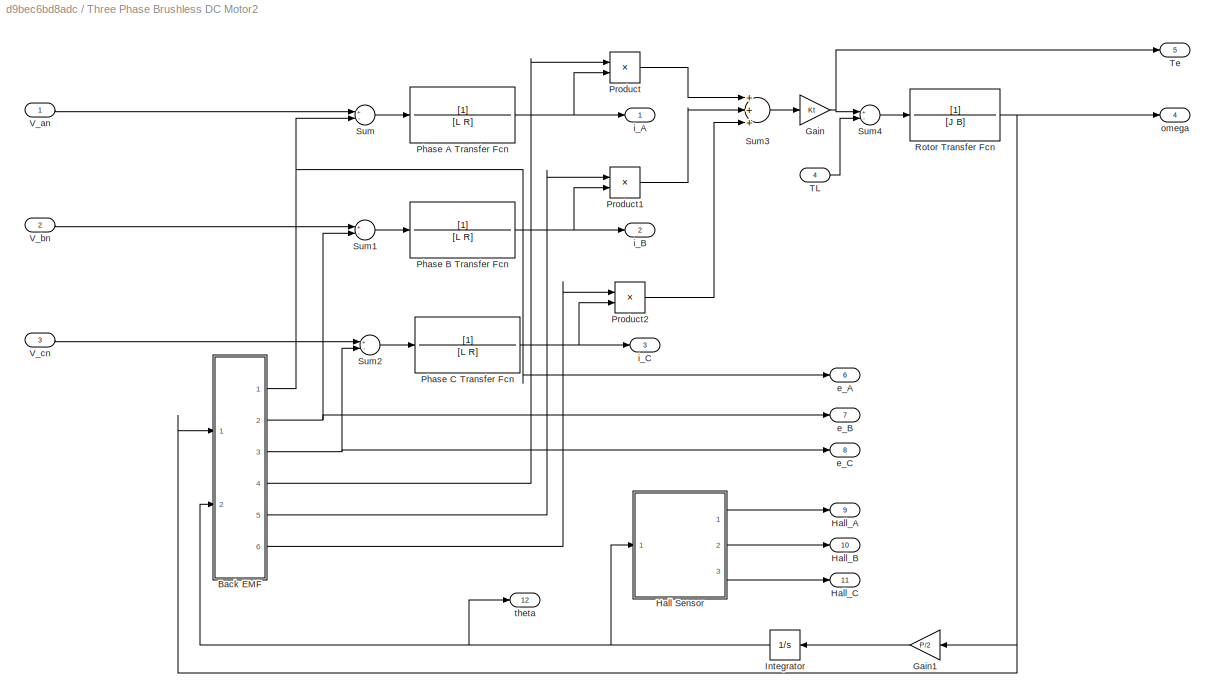
BLOCK [SubSystem] Three Phase Brushless DC Motor2
  Ports = [4, 12]
  RequestExecContextInheritance = off
BLOCK [SubSystem] Three Phase Brushless DC Motor2/Back EMF
  Ports = [2, 6]
  RequestExecContextInheritance = off
BLOCK [Gain] Three Phase Brushless DC Motor2/Back EMF/Gain
  Gain = Ke
  OutDataTypeStr = Inherit: Inherit via internal rule
  ParamDataTypeStr = Inherit: Inherit via internal rule
  SaturateOnIntegerOverflow = off
BLOCK [Product] Three Phase Brushless DC Motor2/Back EMF/Product
  InputSameDT = off
  OutDataTypeStr = Inherit: Inherit via internal rule
  Ports = [2, 1]
  RndMeth = Floor
  SaturateOnIntegerOverflow = off
BLOCK [Product] Three Phase Brushless DC Motor2/Back EMF/Product1
  InputSameDT = off
  OutDataTypeStr = Inherit: Inherit via internal rule
  Ports = [2, 1]
  RndMeth = Floor
  SaturateOnIntegerOverflow = off
BLOCK [Product] Three Phase Brushless DC Motor2/Back EMF/Product2
  InputSameDT = off
  OutDataTypeStr = Inherit: Inherit via internal rule
  Ports = [2, 1]
  RndMeth = Floor
  SaturateOnIntegerOverflow = off
BLOCK [Outport] Three Phase Brushless DC Motor2/Back EMF/e_a
  IconDisplay = Port number
BLOCK [Outport] Three Phase Brushless DC Motor2/Back EMF/e_b
  IconDisplay = Port number
  Port = 2
BLOCK [Outport] Three Phase Brushless DC Motor2/Back EMF/e_c
  IconDisplay = Port number
  Port = 3
BLOCK [SubSystem] Three Phase Brushless DC Motor2/Back EMF/f(a)
  Ports = [1, 1]
  RequestExecContextInheritance = off
BLOCK [Trigonometry] Three Phase Brushless DC Motor2/Back EMF/f(a)/Atan2
  Operator = atan2
  Ports = [2, 1]
BLOCK [Trigonometry] Three Phase Brushless DC Motor2/Back EMF/f(a)/Cos
  Operator = cos
  Ports = [1, 1]
BLOCK [Reference] Three Phase Brushless DC Motor2/Back EMF/f(a)/Radians to Degrees  REF=simulink_extras/Transformations/Radians
to Degrees
  Ports = [1, 1]
  SourceBlock = simulink_extras/Transformations/Radians\nto Degrees
  SourceProductBaseCode = SL
  SourceProductName = Simulink
  SourceType = RadiansToDegrees
BLOCK [Trigonometry] Three Phase Brushless DC Motor2/Back EMF/f(a)/Sin
  Ports = [1, 1]
BLOCK [Lookup_n-D] Three Phase Brushless DC Motor2/Back EMF/f(a)/Trapizoidal Lookup with Linear Point-slope Interpolation
  BreakpointsForDimension1 = [-180,  -120,   -60,     0,    60,   120,   180]
  InternalRulePriority = Speed
  NumberOfTableDimensions = 1
  Ports = [1, 1]
  RndMeth = Simplest
  Table = [-1,-1,-1,1,1,1,-1]
BLOCK [Outport] Three Phase Brushless DC Motor2/Back EMF/f(a)/fa
  IconDisplay = Port number
BLOCK [Inport] Three Phase Brushless DC Motor2/Back EMF/f(a)/theta
  IconDisplay = Port number
BLOCK [SubSystem] Three Phase Brushless DC Motor2/Back EMF/f(b)
  Ports = [1, 1]
  RequestExecContextInheritance = off
BLOCK [Trigonometry] Three Phase Brushless DC Motor2/Back EMF/f(b)/Atan2
  Operator = atan2
  Ports = [2, 1]
BLOCK [Trigonometry] Three Phase Brushless DC Motor2/Back EMF/f(b)/Cos
  Operator = cos
  Ports = [1, 1]
BLOCK [Reference] Three Phase Brushless DC Motor2/Back EMF/f(b)/Radians to Degrees  REF=simulink_extras/Transformations/Radians
to Degrees
  Ports = [1, 1]
  SourceBlock = simulink_extras/Transformations/Radians\nto Degrees
  SourceProductBaseCode = SL
  SourceProductName = Simulink
  SourceType = RadiansToDegrees
BLOCK [Trigonometry] Three Phase Brushless DC Motor2/Back EMF/f(b)/Sin
  Ports = [1, 1]
BLOCK [Lookup_n-D] Three Phase Brushless DC Motor2/Back EMF/f(b)/Trapizoidal Lookup with Linear Point-slope Interpolation
  BreakpointsForDimension1 = [-180,  -120,   -60,     0,    60,   120,   180]
  InternalRulePriority = Speed
  NumberOfTableDimensions = 1
  Ports = [1, 1]
  RndMeth = Simplest
  Table = [1,1,-1,-1,-1,1,1]
BLOCK [Outport] Three Phase Brushless DC Motor2/Back EMF/f(b)/fb
  IconDisplay = Port number
BLOCK [Inport] Three Phase Brushless DC Motor2/Back EMF/f(b)/theta
  IconDisplay = Port number
BLOCK [SubSystem] Three Phase Brushless DC Motor2/Back EMF/f(c)
  Ports = [1, 1]
  RequestExecContextInheritance = off
BLOCK [Trigonometry] Three Phase Brushless DC Motor2/Back EMF/f(c)/Atan2
  Operator = atan2
  Ports = [2, 1]
BLOCK [Trigonometry] Three Phase Brushless DC Motor2/Back EMF/f(c)/Cos
  Operator = cos
  Ports = [1, 1]
BLOCK [Reference] Three Phase Brushless DC Motor2/Back EMF/f(c)/Radians to Degrees  REF=simulink_extras/Transformations/Radians
to Degrees
  Ports = [1, 1]
  SourceBlock = simulink_extras/Transformations/Radians\nto Degrees
  SourceProductBaseCode = SL
  SourceProductName = Simulink
  SourceType = RadiansToDegrees
BLOCK [Trigonometry] Three Phase Brushless DC Motor2/Back EMF/f(c)/Sin
  Ports = [1, 1]
BLOCK [Lookup_n-D] Three Phase Brushless DC Motor2/Back EMF/f(c)/Trapizoidal Lookup with Linear Point-slope Interpolation
  BreakpointsForDimension1 = [-180,  -120,   -60,     0,    60,   120,   180]
  InternalRulePriority = Speed
  NumberOfTableDimensions = 1
  Ports = [1, 1]
  RndMeth = Simplest
  Table = [-1,1,1,1,-1,-1,-1]
BLOCK [Outport] Three Phase Brushless DC Motor2/Back EMF/f(c)/fc
  IconDisplay = Port number
BLOCK [Inport] Three Phase Brushless DC Motor2/Back EMF/f(c)/theta
  IconDisplay = Port number
BLOCK [Outport] Three Phase Brushless DC Motor2/Back EMF/fa
  IconDisplay = Port number
  Port = 4
BLOCK [Outport] Three Phase Brushless DC Motor2/Back EMF/fb
  IconDisplay = Port number
  Port = 5
BLOCK [Outport] Three Phase Brushless DC Motor2/Back EMF/fc
  IconDisplay = Port number
  Port = 6
BLOCK [Inport] Three Phase Brushless DC Motor2/Back EMF/omega
  IconDisplay = Port number
BLOCK [Inport] Three Phase Brushless DC Motor2/Back EMF/theta
  IconDisplay = Port number
  Port = 2
BLOCK [Gain] Three Phase Brushless DC Motor2/Gain
  Gain = Kt
  OutDataTypeStr = Inherit: Inherit via internal rule
  ParamDataTypeStr = Inherit: Inherit via internal rule
  SaturateOnIntegerOverflow = off
BLOCK [Gain] Three Phase Brushless DC Motor2/Gain1
  Gain = P/2
  OutDataTypeStr = Inherit: Inherit via internal rule
  ParamDataTypeStr = Inherit: Inherit via internal rule
  SaturateOnIntegerOverflow = off
BLOCK [SubSystem] Three Phase Brushless DC Motor2/Hall Sensor
  Ports = [1, 3]
  RequestExecContextInheritance = off
BLOCK [Trigonometry] Three Phase Brushless DC Motor2/Hall Sensor/Atan2
  Operator = atan2
  Ports = [2, 1]
BLOCK [Constant] Three Phase Brushless DC Motor2/Hall Sensor/Constant
  Value = pi
BLOCK [Constant] Three Phase Brushless DC Motor2/Hall Sensor/Constant1
  Value = 0
BLOCK [Constant] Three Phase Brushless DC Motor2/Hall Sensor/Constant2
  Value = 5*pi/3
BLOCK [Constant] Three Phase Brushless DC Motor2/Hall Sensor/Constant3
  Value = 2*pi/3
BLOCK [Constant] Three Phase Brushless DC Motor2/Hall Sensor/Constant4
  Value = pi/3
BLOCK [Constant] Three Phase Brushless DC Motor2/Hall Sensor/Constant5
  Value = 0
BLOCK [Constant] Three Phase Brushless DC Motor2/Hall Sensor/Constant6
  Value = 2*pi
BLOCK [Constant] Three Phase Brushless DC Motor2/Hall Sensor/Constant7
  Value = 4*pi/3
BLOCK [Constant] Three Phase Brushless DC Motor2/Hall Sensor/Constant8
  Value = pi
BLOCK [Trigonometry] Three Phase Brushless DC Motor2/Hall Sensor/Cos
  Operator = cos
  Ports = [1, 1]
BLOCK [Outport] Three Phase Brushless DC Motor2/Hall Sensor/Hall_A
  IconDisplay = Port number
BLOCK [Outport] Three Phase Brushless DC Motor2/Hall Sensor/Hall_B
  IconDisplay = Port number
  Port = 2
BLOCK [Outport] Three Phase Brushless DC Motor2/Hall Sensor/Hall_C
  IconDisplay = Port number
  Port = 3
BLOCK [Reference] Three Phase Brushless DC Motor2/Hall Sensor/Interval Test Dynamic  REF=simulink/Logic and Bit
Operations/Interval Test
Dynamic
  Ports = [3, 1]
  SourceBlock = simulink/Logic and Bit\nOperations/Interval Test\nDynamic
  SourceProductBaseCode = SL
  SourceProductName = Simulink
  SourceType = Interval Test Dynamic
BLOCK [Reference] Three Phase Brushless DC Motor2/Hall Sensor/Interval Test Dynamic1  REF=simulink/Logic and Bit
Operations/Interval Test
Dynamic
  Ports = [3, 1]
  SourceBlock = simulink/Logic and Bit\nOperations/Interval Test\nDynamic
  SourceProductBaseCode = SL
  SourceProductName = Simulink
  SourceType = Interval Test Dynamic
BLOCK [Reference] Three Phase Brushless DC Motor2/Hall Sensor/Interval Test Dynamic2  REF=simulink/Logic and Bit
Operations/Interval Test
Dynamic
  Ports = [3, 1]
  SourceBlock = simulink/Logic and Bit\nOperations/Interval Test\nDynamic
  SourceProductBaseCode = SL
  SourceProductName = Simulink
  SourceType = Interval Test Dynamic
BLOCK [Reference] Three Phase Brushless DC Motor2/Hall Sensor/Interval Test Dynamic3  REF=simulink/Logic and Bit
Operations/Interval Test
Dynamic
  Ports = [3, 1]
  SourceBlock = simulink/Logic and Bit\nOperations/Interval Test\nDynamic
  SourceProductBaseCode = SL
  SourceProductName = Simulink
  SourceType = Interval Test Dynamic
BLOCK [Logic] Three Phase Brushless DC Motor2/Hall Sensor/Logical Operator
  AllPortsSameDT = off
  Operator = OR
  OutDataTypeStr = boolean
  Ports = [2, 1]
BLOCK [Trigonometry] Three Phase Brushless DC Motor2/Hall Sensor/Sin
  Ports = [1, 1]
BLOCK [Sum] Three Phase Brushless DC Motor2/Hall Sensor/Sum
  IconShape = round
  InputSameDT = off
  Inputs = |+-
  OutDataTypeStr = Inherit: Inherit via internal rule
  Ports = [2, 1]
  SaturateOnIntegerOverflow = off
BLOCK [Sum] Three Phase Brushless DC Motor2/Hall Sensor/Sum1
  IconShape = round
  InputSameDT = off
  Inputs = |++
  OutDataTypeStr = Inherit: Inherit via internal rule
  Ports = [2, 1]
  SaturateOnIntegerOverflow = off
BLOCK [Inport] Three Phase Brushless DC Motor2/Hall Sensor/theta
  IconDisplay = Port number
BLOCK [Outport] Three Phase Brushless DC Motor2/Hall_A
  IconDisplay = Port number
  Port = 9
BLOCK [Outport] Three Phase Brushless DC Motor2/Hall_B
  IconDisplay = Port number
  Port = 10
BLOCK [Outport] Three Phase Brushless DC Motor2/Hall_C
  IconDisplay = Port number
  Port = 11
BLOCK [Integrator] Three Phase Brushless DC Motor2/Integrator
  Ports = [1, 1]
BLOCK [TransferFcn] Three Phase Brushless DC Motor2/Phase A Transfer Fcn
  Denominator = [L R]
BLOCK [TransferFcn] Three Phase Brushless DC Motor2/Phase B Transfer Fcn
  Denominator = [L R]
BLOCK [TransferFcn] Three Phase Brushless DC Motor2/Phase C Transfer Fcn
  Denominator = [L R]
BLOCK [Product] Three Phase Brushless DC Motor2/Product
  InputSameDT = off
  OutDataTypeStr = Inherit: Inherit via internal rule
  Ports = [2, 1]
  RndMeth = Floor
  SaturateOnIntegerOverflow = off
BLOCK [Product] Three Phase Brushless DC Motor2/Product1
  InputSameDT = off
  OutDataTypeStr = Inherit: Inherit via internal rule
  Ports = [2, 1]
  RndMeth = Floor
  SaturateOnIntegerOverflow = off
BLOCK [Product] Three Phase Brushless DC Motor2/Product2
  InputSameDT = off
  OutDataTypeStr = Inherit: Inherit via internal rule
  Ports = [2, 1]
  RndMeth = Floor
  SaturateOnIntegerOverflow = off
BLOCK [TransferFcn] Three Phase Brushless DC Motor2/Rotor Transfer Fcn
  Denominator = [J B]
BLOCK [Sum] Three Phase Brushless DC Motor2/Sum
  InputSameDT = off
  Inputs = +-
  OutDataTypeStr = Inherit: Inherit via internal rule
  Ports = [2, 1]
  SaturateOnIntegerOverflow = off
BLOCK [Sum] Three Phase Brushless DC Motor2/Sum1
  InputSameDT = off
  Inputs = +-
  OutDataTypeStr = Inherit: Inherit via internal rule
  Ports = [2, 1]
  SaturateOnIntegerOverflow = off
BLOCK [Sum] Three Phase Brushless DC Motor2/Sum2
  InputSameDT = off
  Inputs = +-
  OutDataTypeStr = Inherit: Inherit via internal rule
  Ports = [2, 1]
  SaturateOnIntegerOverflow = off
BLOCK [Sum] Three Phase Brushless DC Motor2/Sum3
  InputSameDT = off
  Inputs = +++
  OutDataTypeStr = Inherit: Inherit via internal rule
  Ports = [3, 1]
  SaturateOnIntegerOverflow = off
BLOCK [Sum] Three Phase Brushless DC Motor2/Sum4
  InputSameDT = off
  Inputs = +-
  OutDataTypeStr = Inherit: Inherit via internal rule
  Ports = [2, 1]
  SaturateOnIntegerOverflow = off
BLOCK [Inport] Three Phase Brushless DC Motor2/TL
  IconDisplay = Port number
  Port = 4
BLOCK [Outport] Three Phase Brushless DC Motor2/Te
  IconDisplay = Port number
  Port = 5
BLOCK [Inport] Three Phase Brushless DC Motor2/V_an
  IconDisplay = Port number
BLOCK [Inport] Three Phase Brushless DC Motor2/V_bn
  IconDisplay = Port number
  Port = 2
BLOCK [Inport] Three Phase Brushless DC Motor2/V_cn
  IconDisplay = Port number
  Port = 3
BLOCK [Outport] Three Phase Brushless DC Motor2/e_A
  IconDisplay = Port number
  Port = 6
BLOCK [Outport] Three Phase Brushless DC Motor2/e_B
  IconDisplay = Port number
  Port = 7
BLOCK [Outport] Three Phase Brushless DC Motor2/e_C
  IconDisplay = Port number
  Port = 8
BLOCK [Outport] Three Phase Brushless DC Motor2/i_A
  IconDisplay = Port number
BLOCK [Outport] Three Phase Brushless DC Motor2/i_B
  IconDisplay = Port number
  Port = 2
BLOCK [Outport] Three Phase Brushless DC Motor2/i_C
  IconDisplay = Port number
  Port = 3
BLOCK [Outport] Three Phase Brushless DC Motor2/omega
  IconDisplay = Port number
  Port = 4
BLOCK [Outport] Three Phase Brushless DC Motor2/theta
  IconDisplay = Port number
  Port = 12
ANNOTATION (root): Field Oriented Control
ANNOTATION (root): Space Vector Control
ANNOTATION (root): Motor Parameters Property Variable Value Unit Viscous damping B 0.000052 N-m/(rad/s) Rotor inertia J 0.0007 Kg-m^2 Back-EMF constant Ke 0.0071 V/rad/s Torque constant Kt 0.0071 N-m/A Inductance L 0.005 H Number of Poles P 4 - Resistance R 3.25 Ohm
ANNOTATION (root): Three Phase Brushless DC Motor Model
ANNOTATION (root): Space Vector Contro
ANNOTATION FOC: Clarke Transform : Three phase component projection in fixed cartatian frame Clark to Park : Rotated reference frame with respect to stationary
LINE Angle:1 -> Sum3:1
LINE Damping:1 -> Sum1:2
LINE Demux:1 -> FOC:1
LINE Demux:2 -> FOC:2
LINE Demux:3 -> FOC:3
LINE FOC/Clarke to Park:1 -> FOC/Sum1:2
LINE FOC/Clarke to Park:2 -> FOC/Sum:1
LINE FOC/Clarke:1 -> FOC/Clarke to Park:1
LINE FOC/Clarke:2 -> FOC/Clarke to Park:2
LINE FOC/Park to Clarke:1 -> FOC/inverse Clarke:1
LINE FOC/Park to Clarke:2 -> FOC/inverse Clarke:2
LINE FOC/Saturation1:1 -> FOC/vb:1
LINE FOC/Saturation2:1 -> FOC/vc:1
LINE FOC/Saturation:1 -> FOC/va:1
LINE FOC/Sum1:1 -> FOC/Park to Clarke:1
LINE FOC/Sum:1 -> FOC/Park to Clarke:2
LINE FOC/a:1 -> FOC/Clarke:1
LINE FOC/b:1 -> FOC/Clarke:2
LINE FOC/c:1 -> FOC/Clarke:3
LINE FOC/d_ref:1 -> FOC/Sum1:1
LINE FOC/inverse Clarke:1 -> FOC/Saturation:1
LINE FOC/inverse Clarke:2 -> FOC/Saturation1:1
LINE FOC/inverse Clarke:3 -> FOC/Saturation2:1
LINE FOC/q_ref:1 -> FOC/Sum:2
NET FOC/theta :1 -> FOC/Clarke to Park:3, FOC/Park to Clarke:3
LINE FOC:1 -> Three Phase Brushless DC Motor2:1
LINE FOC:2 -> Three Phase Brushless DC Motor2:2
LINE FOC:3 -> Three Phase Brushless DC Motor2:3
LINE Field Oriented Control with Park Only/Constant:1 -> Field Oriented Control with Park Only/Sum:1
LINE Field Oriented Control with Park Only/Park:1 -> Field Oriented Control with Park Only/Sum:2
LINE Field Oriented Control with Park Only/Park:2 -> Field Oriented Control with Park Only/Sum1:1
LINE Field Oriented Control with Park Only/Sum1:1 -> Field Oriented Control with Park Only/inv_park:2
LINE Field Oriented Control with Park Only/Sum:1 -> Field Oriented Control with Park Only/inv_park:1
LINE Field Oriented Control with Park Only/i_a:1 -> Field Oriented Control with Park Only/Park:1
LINE Field Oriented Control with Park Only/i_b:1 -> Field Oriented Control with Park Only/Park:2
LINE Field Oriented Control with Park Only/i_c:1 -> Field Oriented Control with Park Only/Park:3
LINE Field Oriented Control with Park Only/inv_park:1 -> Field Oriented Control with Park Only/v_a:1
LINE Field Oriented Control with Park Only/inv_park:2 -> Field Oriented Control with Park Only/v_b:1
LINE Field Oriented Control with Park Only/inv_park:3 -> Field Oriented Control with Park Only/v_c:1
LINE Field Oriented Control with Park Only/ref_q:1 -> Field Oriented Control with Park Only/Sum1:2
NET Field Oriented Control with Park Only/theta:1 -> Field Oriented Control with Park Only/Park:4, Field Oriented Control with Park Only/inv_park:3
LINE Mux1:1 -> Scope:1
LINE Mux2:1 -> Scope5:1
NET Mux:1 -> Demux:1, Scope4:1
LINE PID Controller1:1 -> Space Vector:1
LINE PID Controller:1 -> FOC:4
LINE Phase Correction -pi//2 for d aligend with a axis:1 -> Sum2:1
LINE Reference Velocity :1 -> Sum:1
LINE Space Vector/Gain:1 -> Space Vector/SPWM//SVPWM_reference:1
LINE Space Vector/SPWM//SVPWM_reference/Constant1:1 -> Space Vector/SPWM//SVPWM_reference/Sum1:2
LINE Space Vector/SPWM//SVPWM_reference/Constant:1 -> Space Vector/SPWM//SVPWM_reference/Sum:2
NET Space Vector/SPWM//SVPWM_reference/Gain1:1 -> Space Vector/SPWM//SVPWM_reference/Subtract1:2, Space Vector/SPWM//SVPWM_reference/Subtract2:2, Space Vector/SPWM//SVPWM_reference/Subtract:2
NET Space Vector/SPWM//SVPWM_reference/Gain:1 -> Space Vector/SPWM//SVPWM_reference/Product1:2, Space Vector/SPWM//SVPWM_reference/Product2:2, Space Vector/SPWM//SVPWM_reference/Product:2
LINE Space Vector/SPWM//SVPWM_reference/Max:1 -> Space Vector/SPWM//SVPWM_reference/Sum2:2
LINE Space Vector/SPWM//SVPWM_reference/Min:1 -> Space Vector/SPWM//SVPWM_reference/Sum2:1
NET Space Vector/SPWM//SVPWM_reference/Product1:1 -> Space Vector/SPWM//SVPWM_reference/B:1, Space Vector/SPWM//SVPWM_reference/Max:2, Space Vector/SPWM//SVPWM_reference/Min:2, Space Vector/SPWM//SVPWM_reference/Subtract1:1
NET Space Vector/SPWM//SVPWM_reference/Product2:1 -> Space Vector/SPWM//SVPWM_reference/C:1, Space Vector/SPWM//SVPWM_reference/Max:3, Space Vector/SPWM//SVPWM_reference/Min:3, Space Vector/SPWM//SVPWM_reference/Subtract2:1
NET Space Vector/SPWM//SVPWM_reference/Product:1 -> Space Vector/SPWM//SVPWM_reference/A:1, Space Vector/SPWM//SVPWM_reference/Max:1, Space Vector/SPWM//SVPWM_reference/Min:1, Space Vector/SPWM//SVPWM_reference/Subtract:1
LINE Space Vector/SPWM//SVPWM_reference/Sin1:1 -> Space Vector/SPWM//SVPWM_reference/Product1:1
LINE Space Vector/SPWM//SVPWM_reference/Sin2:1 -> Space Vector/SPWM//SVPWM_reference/Product:1
LINE Space Vector/SPWM//SVPWM_reference/Sin3:1 -> Space Vector/SPWM//SVPWM_reference/Product2:1
LINE Space Vector/SPWM//SVPWM_reference/Subtract1:1 -> Space Vector/SPWM//SVPWM_reference/B1:1
LINE Space Vector/SPWM//SVPWM_reference/Subtract2:1 -> Space Vector/SPWM//SVPWM_reference/C1:1
LINE Space Vector/SPWM//SVPWM_reference/Subtract:1 -> Space Vector/SPWM//SVPWM_reference/A1:1
LINE Space Vector/SPWM//SVPWM_reference/Sum1:1 -> Space Vector/SPWM//SVPWM_reference/Sin3:1
LINE Space Vector/SPWM//SVPWM_reference/Sum2:1 -> Space Vector/SPWM//SVPWM_reference/Gain1:1
LINE Space Vector/SPWM//SVPWM_reference/Sum:1 -> Space Vector/SPWM//SVPWM_reference/Sin1:1
NET Space Vector/SPWM//SVPWM_reference/theta:1 -> Space Vector/SPWM//SVPWM_reference/Sin2:1, Space Vector/SPWM//SVPWM_reference/Sum1:1, Space Vector/SPWM//SVPWM_reference/Sum:1
LINE Space Vector/SPWM//SVPWM_reference:1 -> Space Vector/A:1
LINE Space Vector/SPWM//SVPWM_reference:2 -> Space Vector/B:1
LINE Space Vector/SPWM//SVPWM_reference:3 -> Space Vector/C:1
LINE Space Vector/SPWM//SVPWM_reference:4 -> Space Vector/V neurtral to Vg:1
LINE Space Vector/SPWM//SVPWM_reference:5 -> Space Vector/V neurtral to Vg:2
LINE Space Vector/SPWM//SVPWM_reference:6 -> Space Vector/V neurtral to Vg:3
LINE Space Vector/V neurtral to Vg/Constant2:1 -> Space Vector/V neurtral to Vg/Product:1
LINE Space Vector/V neurtral to Vg/Demux:1 -> Space Vector/V neurtral to Vg/Vag:1
LINE Space Vector/V neurtral to Vg/Demux:2 -> Space Vector/V neurtral to Vg/Vbg:1
LINE Space Vector/V neurtral to Vg/Demux:3 -> Space Vector/V neurtral to Vg/Vbc:1
LINE Space Vector/V neurtral to Vg/Product:1 -> Space Vector/V neurtral to Vg/Demux:1
LINE Space Vector/V neurtral to Vg/Va:1 -> Space Vector/V neurtral to Vg/Vector Concatenate:1
LINE Space Vector/V neurtral to Vg/Vb:1 -> Space Vector/V neurtral to Vg/Vector Concatenate:2
LINE Space Vector/V neurtral to Vg/Vc:1 -> Space Vector/V neurtral to Vg/Vector Concatenate:3
LINE Space Vector/V neurtral to Vg/Vector Concatenate:1 -> Space Vector/V neurtral to Vg/Product:2
LINE Space Vector/V neurtral to Vg:1 -> Space Vector/V_A:1
LINE Space Vector/V neurtral to Vg:2 -> Space Vector/V_B:1
LINE Space Vector/V neurtral to Vg:3 -> Space Vector/V_C:1
LINE Space Vector/theta:1 -> Space Vector/SPWM//SVPWM_reference:2
LINE Space Vector:1 -> Three Phase Brushless DC Motor1:1
LINE Space Vector:2 -> Three Phase Brushless DC Motor1:2
LINE Space Vector:3 -> Three Phase Brushless DC Motor1:3
LINE Sum1:1 -> PID Controller:1
LINE Sum2:1 -> FOC:5
LINE Sum3:1 -> Sum1:1
LINE Sum:1 -> PID Controller1:1
NET Three Phase Brushless DC Motor1/Back EMF/Gain:1 -> Three Phase Brushless DC Motor1/Back EMF/Product1:1, Three Phase Brushless DC Motor1/Back EMF/Product2:1, Three Phase Brushless DC Motor1/Back EMF/Product:1
LINE Three Phase Brushless DC Motor1/Back EMF/Product1:1 -> Three Phase Brushless DC Motor1/Back EMF/e_b:1
LINE Three Phase Brushless DC Motor1/Back EMF/Product2:1 -> Three Phase Brushless DC Motor1/Back EMF/e_c:1
LINE Three Phase Brushless DC Motor1/Back EMF/Product:1 -> Three Phase Brushless DC Motor1/Back EMF/e_a:1
LINE Three Phase Brushless DC Motor1/Back EMF/f(a)/Atan2:1 -> Three Phase Brushless DC Motor1/Back EMF/f(a)/Radians to Degrees:1
LINE Three Phase Brushless DC Motor1/Back EMF/f(a)/Cos:1 -> Three Phase Brushless DC Motor1/Back EMF/f(a)/Atan2:2
LINE Three Phase Brushless DC Motor1/Back EMF/f(a)/Radians to Degrees:1 -> Three Phase Brushless DC Motor1/Back EMF/f(a)/Trapizoidal Lookup with Linear Point-slope Interpolation:1
LINE Three Phase Brushless DC Motor1/Back EMF/f(a)/Sin:1 -> Three Phase Brushless DC Motor1/Back EMF/f(a)/Atan2:1
LINE Three Phase Brushless DC Motor1/Back EMF/f(a)/Trapizoidal Lookup with Linear Point-slope Interpolation:1 -> Three Phase Brushless DC Motor1/Back EMF/f(a)/fa:1
NET Three Phase Brushless DC Motor1/Back EMF/f(a)/theta:1 -> Three Phase Brushless DC Motor1/Back EMF/f(a)/Cos:1, Three Phase Brushless DC Motor1/Back EMF/f(a)/Sin:1
NET Three Phase Brushless DC Motor1/Back EMF/f(a):1 -> Three Phase Brushless DC Motor1/Back EMF/Product:2, Three Phase Brushless DC Motor1/Back EMF/fa:1
LINE Three Phase Brushless DC Motor1/Back EMF/f(b)/Atan2:1 -> Three Phase Brushless DC Motor1/Back EMF/f(b)/Radians to Degrees:1
LINE Three Phase Brushless DC Motor1/Back EMF/f(b)/Cos:1 -> Three Phase Brushless DC Motor1/Back EMF/f(b)/Atan2:2
LINE Three Phase Brushless DC Motor1/Back EMF/f(b)/Radians to Degrees:1 -> Three Phase Brushless DC Motor1/Back EMF/f(b)/Trapizoidal Lookup with Linear Point-slope Interpolation:1
LINE Three Phase Brushless DC Motor1/Back EMF/f(b)/Sin:1 -> Three Phase Brushless DC Motor1/Back EMF/f(b)/Atan2:1
LINE Three Phase Brushless DC Motor1/Back EMF/f(b)/Trapizoidal Lookup with Linear Point-slope Interpolation:1 -> Three Phase Brushless DC Motor1/Back EMF/f(b)/fb:1
NET Three Phase Brushless DC Motor1/Back EMF/f(b)/theta:1 -> Three Phase Brushless DC Motor1/Back EMF/f(b)/Cos:1, Three Phase Brushless DC Motor1/Back EMF/f(b)/Sin:1
NET Three Phase Brushless DC Motor1/Back EMF/f(b):1 -> Three Phase Brushless DC Motor1/Back EMF/Product1:2, Three Phase Brushless DC Motor1/Back EMF/fb:1
LINE Three Phase Brushless DC Motor1/Back EMF/f(c)/Atan2:1 -> Three Phase Brushless DC Motor1/Back EMF/f(c)/Radians to Degrees:1
LINE Three Phase Brushless DC Motor1/Back EMF/f(c)/Cos:1 -> Three Phase Brushless DC Motor1/Back EMF/f(c)/Atan2:2
LINE Three Phase Brushless DC Motor1/Back EMF/f(c)/Radians to Degrees:1 -> Three Phase Brushless DC Motor1/Back EMF/f(c)/Trapizoidal Lookup with Linear Point-slope Interpolation:1
LINE Three Phase Brushless DC Motor1/Back EMF/f(c)/Sin:1 -> Three Phase Brushless DC Motor1/Back EMF/f(c)/Atan2:1
LINE Three Phase Brushless DC Motor1/Back EMF/f(c)/Trapizoidal Lookup with Linear Point-slope Interpolation:1 -> Three Phase Brushless DC Motor1/Back EMF/f(c)/fc:1
NET Three Phase Brushless DC Motor1/Back EMF/f(c)/theta:1 -> Three Phase Brushless DC Motor1/Back EMF/f(c)/Cos:1, Three Phase Brushless DC Motor1/Back EMF/f(c)/Sin:1
NET Three Phase Brushless DC Motor1/Back EMF/f(c):1 -> Three Phase Brushless DC Motor1/Back EMF/Product2:2, Three Phase Brushless DC Motor1/Back EMF/fc:1
LINE Three Phase Brushless DC Motor1/Back EMF/omega:1 -> Three Phase Brushless DC Motor1/Back EMF/Gain:1
NET Three Phase Brushless DC Motor1/Back EMF/theta:1 -> Three Phase Brushless DC Motor1/Back EMF/f(a):1, Three Phase Brushless DC Motor1/Back EMF/f(b):1, Three Phase Brushless DC Motor1/Back EMF/f(c):1
NET Three Phase Brushless DC Motor1/Back EMF:1 -> Three Phase Brushless DC Motor1/Sum:2, Three Phase Brushless DC Motor1/e_A:1
NET Three Phase Brushless DC Motor1/Back EMF:2 -> Three Phase Brushless DC Motor1/Sum1:2, Three Phase Brushless DC Motor1/e_B:1
NET Three Phase Brushless DC Motor1/Back EMF:3 -> Three Phase Brushless DC Motor1/Sum2:2, Three Phase Brushless DC Motor1/e_C:1
LINE Three Phase Brushless DC Motor1/Back EMF:4 -> Three Phase Brushless DC Motor1/Product:1
LINE Three Phase Brushless DC Motor1/Back EMF:5 -> Three Phase Brushless DC Motor1/Product1:1
LINE Three Phase Brushless DC Motor1/Back EMF:6 -> Three Phase Brushless DC Motor1/Product2:1
LINE Three Phase Brushless DC Motor1/Gain1:1 -> Three Phase Brushless DC Motor1/Integrator:1
NET Three Phase Brushless DC Motor1/Gain:1 -> Three Phase Brushless DC Motor1/Sum4:1, Three Phase Brushless DC Motor1/Te:1
LINE Three Phase Brushless DC Motor1/Hall Sensor/Atan2:1 -> Three Phase Brushless DC Motor1/Hall Sensor/Sum1:1
LINE Three Phase Brushless DC Motor1/Hall Sensor/Constant1:1 -> Three Phase Brushless DC Motor1/Hall Sensor/Interval Test Dynamic:3
LINE Three Phase Brushless DC Motor1/Hall Sensor/Constant2:1 -> Three Phase Brushless DC Motor1/Hall Sensor/Interval Test Dynamic1:1
LINE Three Phase Brushless DC Motor1/Hall Sensor/Constant3:1 -> Three Phase Brushless DC Motor1/Hall Sensor/Interval Test Dynamic1:3
LINE Three Phase Brushless DC Motor1/Hall Sensor/Constant4:1 -> Three Phase Brushless DC Motor1/Hall Sensor/Interval Test Dynamic2:1
LINE Three Phase Brushless DC Motor1/Hall Sensor/Constant5:1 -> Three Phase Brushless DC Motor1/Hall Sensor/Interval Test Dynamic2:3
LINE Three Phase Brushless DC Motor1/Hall Sensor/Constant6:1 -> Three Phase Brushless DC Motor1/Hall Sensor/Interval Test Dynamic3:1
LINE Three Phase Brushless DC Motor1/Hall Sensor/Constant7:1 -> Three Phase Brushless DC Motor1/Hall Sensor/Interval Test Dynamic3:3
NET Three Phase Brushless DC Motor1/Hall Sensor/Constant8:1 -> Three Phase Brushless DC Motor1/Hall Sensor/Sum1:2, Three Phase Brushless DC Motor1/Hall Sensor/Sum:2
LINE Three Phase Brushless DC Motor1/Hall Sensor/Constant:1 -> Three Phase Brushless DC Motor1/Hall Sensor/Interval Test Dynamic:1
LINE Three Phase Brushless DC Motor1/Hall Sensor/Cos:1 -> Three Phase Brushless DC Motor1/Hall Sensor/Atan2:2
LINE Three Phase Brushless DC Motor1/Hall Sensor/Interval Test Dynamic1:1 -> Three Phase Brushless DC Motor1/Hall Sensor/Hall_B:1
LINE Three Phase Brushless DC Motor1/Hall Sensor/Interval Test Dynamic2:1 -> Three Phase Brushless DC Motor1/Hall Sensor/Logical Operator:1
LINE Three Phase Brushless DC Motor1/Hall Sensor/Interval Test Dynamic3:1 -> Three Phase Brushless DC Motor1/Hall Sensor/Logical Operator:2
LINE Three Phase Brushless DC Motor1/Hall Sensor/Interval Test Dynamic:1 -> Three Phase Brushless DC Motor1/Hall Sensor/Hall_A:1
LINE Three Phase Brushless DC Motor1/Hall Sensor/Logical Operator:1 -> Three Phase Brushless DC Motor1/Hall Sensor/Hall_C:1
LINE Three Phase Brushless DC Motor1/Hall Sensor/Sin:1 -> Three Phase Brushless DC Motor1/Hall Sensor/Atan2:1
NET Three Phase Brushless DC Motor1/Hall Sensor/Sum1:1 -> Three Phase Brushless DC Motor1/Hall Sensor/Interval Test Dynamic1:2, Three Phase Brushless DC Motor1/Hall Sensor/Interval Test Dynamic2:2, Three Phase Brushless DC Motor1/Hall Sensor/Interval Test Dynamic3:2, Three Phase Brushless DC Motor1/Hall Sensor/Interval Test Dynamic:2
NET Three Phase Brushless DC Motor1/Hall Sensor/Sum:1 -> Three Phase Brushless DC Motor1/Hall Sensor/Cos:1, Three Phase Brushless DC Motor1/Hall Sensor/Sin:1
LINE Three Phase Brushless DC Motor1/Hall Sensor/theta:1 -> Three Phase Brushless DC Motor1/Hall Sensor/Sum:1
LINE Three Phase Brushless DC Motor1/Hall Sensor:1 -> Three Phase Brushless DC Motor1/Hall_A:1
LINE Three Phase Brushless DC Motor1/Hall Sensor:2 -> Three Phase Brushless DC Motor1/Hall_B:1
LINE Three Phase Brushless DC Motor1/Hall Sensor:3 -> Three Phase Brushless DC Motor1/Hall_C:1
NET Three Phase Brushless DC Motor1/Integrator:1 -> Three Phase Brushless DC Motor1/Back EMF:2, Three Phase Brushless DC Motor1/Hall Sensor:1, Three Phase Brushless DC Motor1/theta:1
NET Three Phase Brushless DC Motor1/Phase A Transfer Fcn:1 -> Three Phase Brushless DC Motor1/Product:2, Three Phase Brushless DC Motor1/i_A:1
NET Three Phase Brushless DC Motor1/Phase B Transfer Fcn:1 -> Three Phase Brushless DC Motor1/Product1:2, Three Phase Brushless DC Motor1/i_B:1
NET Three Phase Brushless DC Motor1/Phase C Transfer Fcn:1 -> Three Phase Brushless DC Motor1/Product2:2, Three Phase Brushless DC Motor1/i_C:1
LINE Three Phase Brushless DC Motor1/Product1:1 -> Three Phase Brushless DC Motor1/Sum3:2
LINE Three Phase Brushless DC Motor1/Product2:1 -> Three Phase Brushless DC Motor1/Sum3:3
LINE Three Phase Brushless DC Motor1/Product:1 -> Three Phase Brushless DC Motor1/Sum3:1
NET Three Phase Brushless DC Motor1/Rotor Transfer Fcn:1 -> Three Phase Brushless DC Motor1/Back EMF:1, Three Phase Brushless DC Motor1/Gain1:1, Three Phase Brushless DC Motor1/omega:1
LINE Three Phase Brushless DC Motor1/Sum1:1 -> Three Phase Brushless DC Motor1/Phase B Transfer Fcn:1
LINE Three Phase Brushless DC Motor1/Sum2:1 -> Three Phase Brushless DC Motor1/Phase C Transfer Fcn:1
LINE Three Phase Brushless DC Motor1/Sum3:1 -> Three Phase Brushless DC Motor1/Gain:1
LINE Three Phase Brushless DC Motor1/Sum4:1 -> Three Phase Brushless DC Motor1/Rotor Transfer Fcn:1
LINE Three Phase Brushless DC Motor1/Sum:1 -> Three Phase Brushless DC Motor1/Phase A Transfer Fcn:1
LINE Three Phase Brushless DC Motor1/TL:1 -> Three Phase Brushless DC Motor1/Sum4:2
LINE Three Phase Brushless DC Motor1/V_an:1 -> Three Phase Brushless DC Motor1/Sum:1
LINE Three Phase Brushless DC Motor1/V_bn:1 -> Three Phase Brushless DC Motor1/Sum1:1
LINE Three Phase Brushless DC Motor1/V_cn:1 -> Three Phase Brushless DC Motor1/Sum2:1
LINE Three Phase Brushless DC Motor1:1 -> Mux1:1
LINE Three Phase Brushless DC Motor1:12 -> Space Vector:2
LINE Three Phase Brushless DC Motor1:2 -> Mux1:2
LINE Three Phase Brushless DC Motor1:3 -> Mux1:3
NET Three Phase Brushless DC Motor1:4 -> Scope1:1, Sum:2
NET Three Phase Brushless DC Motor2/Back EMF/Gain:1 -> Three Phase Brushless DC Motor2/Back EMF/Product1:1, Three Phase Brushless DC Motor2/Back EMF/Product2:1, Three Phase Brushless DC Motor2/Back EMF/Product:1
LINE Three Phase Brushless DC Motor2/Back EMF/Product1:1 -> Three Phase Brushless DC Motor2/Back EMF/e_b:1
LINE Three Phase Brushless DC Motor2/Back EMF/Product2:1 -> Three Phase Brushless DC Motor2/Back EMF/e_c:1
LINE Three Phase Brushless DC Motor2/Back EMF/Product:1 -> Three Phase Brushless DC Motor2/Back EMF/e_a:1
LINE Three Phase Brushless DC Motor2/Back EMF/f(a)/Atan2:1 -> Three Phase Brushless DC Motor2/Back EMF/f(a)/Radians to Degrees:1
LINE Three Phase Brushless DC Motor2/Back EMF/f(a)/Cos:1 -> Three Phase Brushless DC Motor2/Back EMF/f(a)/Atan2:2
LINE Three Phase Brushless DC Motor2/Back EMF/f(a)/Radians to Degrees:1 -> Three Phase Brushless DC Motor2/Back EMF/f(a)/Trapizoidal Lookup with Linear Point-slope Interpolation:1
LINE Three Phase Brushless DC Motor2/Back EMF/f(a)/Sin:1 -> Three Phase Brushless DC Motor2/Back EMF/f(a)/Atan2:1
LINE Three Phase Brushless DC Motor2/Back EMF/f(a)/Trapizoidal Lookup with Linear Point-slope Interpolation:1 -> Three Phase Brushless DC Motor2/Back EMF/f(a)/fa:1
NET Three Phase Brushless DC Motor2/Back EMF/f(a)/theta:1 -> Three Phase Brushless DC Motor2/Back EMF/f(a)/Cos:1, Three Phase Brushless DC Motor2/Back EMF/f(a)/Sin:1
NET Three Phase Brushless DC Motor2/Back EMF/f(a):1 -> Three Phase Brushless DC Motor2/Back EMF/Product:2, Three Phase Brushless DC Motor2/Back EMF/fa:1
LINE Three Phase Brushless DC Motor2/Back EMF/f(b)/Atan2:1 -> Three Phase Brushless DC Motor2/Back EMF/f(b)/Radians to Degrees:1
LINE Three Phase Brushless DC Motor2/Back EMF/f(b)/Cos:1 -> Three Phase Brushless DC Motor2/Back EMF/f(b)/Atan2:2
LINE Three Phase Brushless DC Motor2/Back EMF/f(b)/Radians to Degrees:1 -> Three Phase Brushless DC Motor2/Back EMF/f(b)/Trapizoidal Lookup with Linear Point-slope Interpolation:1
LINE Three Phase Brushless DC Motor2/Back EMF/f(b)/Sin:1 -> Three Phase Brushless DC Motor2/Back EMF/f(b)/Atan2:1
LINE Three Phase Brushless DC Motor2/Back EMF/f(b)/Trapizoidal Lookup with Linear Point-slope Interpolation:1 -> Three Phase Brushless DC Motor2/Back EMF/f(b)/fb:1
NET Three Phase Brushless DC Motor2/Back EMF/f(b)/theta:1 -> Three Phase Brushless DC Motor2/Back EMF/f(b)/Cos:1, Three Phase Brushless DC Motor2/Back EMF/f(b)/Sin:1
NET Three Phase Brushless DC Motor2/Back EMF/f(b):1 -> Three Phase Brushless DC Motor2/Back EMF/Product1:2, Three Phase Brushless DC Motor2/Back EMF/fb:1
LINE Three Phase Brushless DC Motor2/Back EMF/f(c)/Atan2:1 -> Three Phase Brushless DC Motor2/Back EMF/f(c)/Radians to Degrees:1
LINE Three Phase Brushless DC Motor2/Back EMF/f(c)/Cos:1 -> Three Phase Brushless DC Motor2/Back EMF/f(c)/Atan2:2
LINE Three Phase Brushless DC Motor2/Back EMF/f(c)/Radians to Degrees:1 -> Three Phase Brushless DC Motor2/Back EMF/f(c)/Trapizoidal Lookup with Linear Point-slope Interpolation:1
LINE Three Phase Brushless DC Motor2/Back EMF/f(c)/Sin:1 -> Three Phase Brushless DC Motor2/Back EMF/f(c)/Atan2:1
LINE Three Phase Brushless DC Motor2/Back EMF/f(c)/Trapizoidal Lookup with Linear Point-slope Interpolation:1 -> Three Phase Brushless DC Motor2/Back EMF/f(c)/fc:1
NET Three Phase Brushless DC Motor2/Back EMF/f(c)/theta:1 -> Three Phase Brushless DC Motor2/Back EMF/f(c)/Cos:1, Three Phase Brushless DC Motor2/Back EMF/f(c)/Sin:1
NET Three Phase Brushless DC Motor2/Back EMF/f(c):1 -> Three Phase Brushless DC Motor2/Back EMF/Product2:2, Three Phase Brushless DC Motor2/Back EMF/fc:1
LINE Three Phase Brushless DC Motor2/Back EMF/omega:1 -> Three Phase Brushless DC Motor2/Back EMF/Gain:1
NET Three Phase Brushless DC Motor2/Back EMF/theta:1 -> Three Phase Brushless DC Motor2/Back EMF/f(a):1, Three Phase Brushless DC Motor2/Back EMF/f(b):1, Three Phase Brushless DC Motor2/Back EMF/f(c):1
NET Three Phase Brushless DC Motor2/Back EMF:1 -> Three Phase Brushless DC Motor2/Sum:2, Three Phase Brushless DC Motor2/e_A:1
NET Three Phase Brushless DC Motor2/Back EMF:2 -> Three Phase Brushless DC Motor2/Sum1:2, Three Phase Brushless DC Motor2/e_B:1
NET Three Phase Brushless DC Motor2/Back EMF:3 -> Three Phase Brushless DC Motor2/Sum2:2, Three Phase Brushless DC Motor2/e_C:1
LINE Three Phase Brushless DC Motor2/Back EMF:4 -> Three Phase Brushless DC Motor2/Product:1
LINE Three Phase Brushless DC Motor2/Back EMF:5 -> Three Phase Brushless DC Motor2/Product1:1
LINE Three Phase Brushless DC Motor2/Back EMF:6 -> Three Phase Brushless DC Motor2/Product2:1
LINE Three Phase Brushless DC Motor2/Gain1:1 -> Three Phase Brushless DC Motor2/Integrator:1
NET Three Phase Brushless DC Motor2/Gain:1 -> Three Phase Brushless DC Motor2/Sum4:1, Three Phase Brushless DC Motor2/Te:1
LINE Three Phase Brushless DC Motor2/Hall Sensor/Atan2:1 -> Three Phase Brushless DC Motor2/Hall Sensor/Sum1:1
LINE Three Phase Brushless DC Motor2/Hall Sensor/Constant1:1 -> Three Phase Brushless DC Motor2/Hall Sensor/Interval Test Dynamic:3
LINE Three Phase Brushless DC Motor2/Hall Sensor/Constant2:1 -> Three Phase Brushless DC Motor2/Hall Sensor/Interval Test Dynamic1:1
LINE Three Phase Brushless DC Motor2/Hall Sensor/Constant3:1 -> Three Phase Brushless DC Motor2/Hall Sensor/Interval Test Dynamic1:3
LINE Three Phase Brushless DC Motor2/Hall Sensor/Constant4:1 -> Three Phase Brushless DC Motor2/Hall Sensor/Interval Test Dynamic2:1
LINE Three Phase Brushless DC Motor2/Hall Sensor/Constant5:1 -> Three Phase Brushless DC Motor2/Hall Sensor/Interval Test Dynamic2:3
LINE Three Phase Brushless DC Motor2/Hall Sensor/Constant6:1 -> Three Phase Brushless DC Motor2/Hall Sensor/Interval Test Dynamic3:1
LINE Three Phase Brushless DC Motor2/Hall Sensor/Constant7:1 -> Three Phase Brushless DC Motor2/Hall Sensor/Interval Test Dynamic3:3
NET Three Phase Brushless DC Motor2/Hall Sensor/Constant8:1 -> Three Phase Brushless DC Motor2/Hall Sensor/Sum1:2, Three Phase Brushless DC Motor2/Hall Sensor/Sum:2
LINE Three Phase Brushless DC Motor2/Hall Sensor/Constant:1 -> Three Phase Brushless DC Motor2/Hall Sensor/Interval Test Dynamic:1
LINE Three Phase Brushless DC Motor2/Hall Sensor/Cos:1 -> Three Phase Brushless DC Motor2/Hall Sensor/Atan2:2
LINE Three Phase Brushless DC Motor2/Hall Sensor/Interval Test Dynamic1:1 -> Three Phase Brushless DC Motor2/Hall Sensor/Hall_B:1
LINE Three Phase Brushless DC Motor2/Hall Sensor/Interval Test Dynamic2:1 -> Three Phase Brushless DC Motor2/Hall Sensor/Logical Operator:1
LINE Three Phase Brushless DC Motor2/Hall Sensor/Interval Test Dynamic3:1 -> Three Phase Brushless DC Motor2/Hall Sensor/Logical Operator:2
LINE Three Phase Brushless DC Motor2/Hall Sensor/Interval Test Dynamic:1 -> Three Phase Brushless DC Motor2/Hall Sensor/Hall_A:1
LINE Three Phase Brushless DC Motor2/Hall Sensor/Logical Operator:1 -> Three Phase Brushless DC Motor2/Hall Sensor/Hall_C:1
LINE Three Phase Brushless DC Motor2/Hall Sensor/Sin:1 -> Three Phase Brushless DC Motor2/Hall Sensor/Atan2:1
NET Three Phase Brushless DC Motor2/Hall Sensor/Sum1:1 -> Three Phase Brushless DC Motor2/Hall Sensor/Interval Test Dynamic1:2, Three Phase Brushless DC Motor2/Hall Sensor/Interval Test Dynamic2:2, Three Phase Brushless DC Motor2/Hall Sensor/Interval Test Dynamic3:2, Three Phase Brushless DC Motor2/Hall Sensor/Interval Test Dynamic:2
NET Three Phase Brushless DC Motor2/Hall Sensor/Sum:1 -> Three Phase Brushless DC Motor2/Hall Sensor/Cos:1, Three Phase Brushless DC Motor2/Hall Sensor/Sin:1
LINE Three Phase Brushless DC Motor2/Hall Sensor/theta:1 -> Three Phase Brushless DC Motor2/Hall Sensor/Sum:1
LINE Three Phase Brushless DC Motor2/Hall Sensor:1 -> Three Phase Brushless DC Motor2/Hall_A:1
LINE Three Phase Brushless DC Motor2/Hall Sensor:2 -> Three Phase Brushless DC Motor2/Hall_B:1
LINE Three Phase Brushless DC Motor2/Hall Sensor:3 -> Three Phase Brushless DC Motor2/Hall_C:1
NET Three Phase Brushless DC Motor2/Integrator:1 -> Three Phase Brushless DC Motor2/Back EMF:2, Three Phase Brushless DC Motor2/Hall Sensor:1, Three Phase Brushless DC Motor2/theta:1
NET Three Phase Brushless DC Motor2/Phase A Transfer Fcn:1 -> Three Phase Brushless DC Motor2/Product:2, Three Phase Brushless DC Motor2/i_A:1
NET Three Phase Brushless DC Motor2/Phase B Transfer Fcn:1 -> Three Phase Brushless DC Motor2/Product1:2, Three Phase Brushless DC Motor2/i_B:1
NET Three Phase Brushless DC Motor2/Phase C Transfer Fcn:1 -> Three Phase Brushless DC Motor2/Product2:2, Three Phase Brushless DC Motor2/i_C:1
LINE Three Phase Brushless DC Motor2/Product1:1 -> Three Phase Brushless DC Motor2/Sum3:2
LINE Three Phase Brushless DC Motor2/Product2:1 -> Three Phase Brushless DC Motor2/Sum3:3
LINE Three Phase Brushless DC Motor2/Product:1 -> Three Phase Brushless DC Motor2/Sum3:1
NET Three Phase Brushless DC Motor2/Rotor Transfer Fcn:1 -> Three Phase Brushless DC Motor2/Back EMF:1, Three Phase Brushless DC Motor2/Gain1:1, Three Phase Brushless DC Motor2/omega:1
LINE Three Phase Brushless DC Motor2/Sum1:1 -> Three Phase Brushless DC Motor2/Phase B Transfer Fcn:1
LINE Three Phase Brushless DC Motor2/Sum2:1 -> Three Phase Brushless DC Motor2/Phase C Transfer Fcn:1
LINE Three Phase Brushless DC Motor2/Sum3:1 -> Three Phase Brushless DC Motor2/Gain:1
LINE Three Phase Brushless DC Motor2/Sum4:1 -> Three Phase Brushless DC Motor2/Rotor Transfer Fcn:1
LINE Three Phase Brushless DC Motor2/Sum:1 -> Three Phase Brushless DC Motor2/Phase A Transfer Fcn:1
LINE Three Phase Brushless DC Motor2/TL:1 -> Three Phase Brushless DC Motor2/Sum4:2
LINE Three Phase Brushless DC Motor2/V_an:1 -> Three Phase Brushless DC Motor2/Sum:1
LINE Three Phase Brushless DC Motor2/V_bn:1 -> Three Phase Brushless DC Motor2/Sum1:1
LINE Three Phase Brushless DC Motor2/V_cn:1 -> Three Phase Brushless DC Motor2/Sum2:1
LINE Three Phase Brushless DC Motor2:1 -> Mux:1
NET Three Phase Brushless DC Motor2:12 -> Scope3:1, Sum2:2
LINE Three Phase Brushless DC Motor2:2 -> Mux:2
LINE Three Phase Brushless DC Motor2:3 -> Mux:3
NET Three Phase Brushless DC Motor2:4 -> Damping:1, Scope2:1
LINE Three Phase Brushless DC Motor2:6 -> Mux2:1
LINE Three Phase Brushless DC Motor2:7 -> Mux2:2
LINE Three Phase Brushless DC Motor2:8 -> Mux2:3
note: NET lines group one-source signal fan-out (src -> all destinations, sorted); 1:1 wires keep LINE
CHART Field Oriented Control with Park Only/inv_Clarke states=1 transitions=1
  STATE_LABEL 'eML_blk_kernel()'
  STATE_LABEL 'SCRIPT:\nfunction [a,b,c]= fcn(alpha,beta)\n% alpha-beta to  abc\n%\na = alpha;\nb = -0.5*alpha+0.8660*beta;\nc = -0.5*alpha-0.8660*beta;\n'
CHART Field Oriented Control with Park Only/Clarke states=1 transitions=1
  STATE_LABEL 'eML_blk_kernel()'
  STATE_LABEL 'SCRIPT:\nfunction [alpha,beta]= fcn(a,b,c)\n% abc to alpha beta\n% Clarke Transform\n%T = [\n %   0.6667   -0.3333   -0.3333;\n %        0    1.1547   -1.1547;\n %        ];\n%u=T*[a;b;c];\nalpha = a;%;u(1);\nbeta =  0.5774*(a+2*b);%;u(2);\n'
CHART Field Oriented Control with Park Only/Park states=1 transitions=1
  STATE_LABEL 'eML_blk_kernel()'
  STATE_LABEL 'SCRIPT:\nfunction [d,q]= fcn(a,b,c,theta)\n% Original Park Transform\n% abc to dq,  a align to q\n%T = 0.8165*[\n%    sin(theta), sin(theta-2*pi/3), sin(theta+2*pi/3);\n%    cos(theta), cos(theta-2*pi/3), cos(theta+2*pi/3);\n%    0.7071,0.7071,0.7071];\n\n% abc to dq,  a align to d\n\nT = 2/3*[\n    cos(theta), cos(theta-2*pi/3), cos(theta+2*pi/3);\n    -sin(theta), -sin(theta-2*pi/3), -sin(theta+2*pi/3);\n    ...<+171ch>'
CHART Field Oriented Control with Park Only/inv_park states=1 transitions=1
  STATE_LABEL 'eML_blk_kernel()'
  STATE_LABEL 'SCRIPT:\nfunction [a,b,c]= fcn(d,q,theta)\n% dq to abc, a aligned to q\n%T=0.8165*[\n%    sin(theta),        cos(theta),            0.7071;\n%    sin(theta-2*pi/3), cos(theta-2*pi/3),     0.7071;\n%    sin(theta+2*pi/3), cos(theta+2*pi/3),     0.7071];\n\n% dq to abc, a aligned to d\nT=[\n    cos(theta),         -sin(theta),          1;\n    cos(theta-2*pi/3), -sin(theta-2*pi/3),    1;\n    cos(theta+2*pi/3),...<+184ch>'
CHART FOC/Clarke states=1 transitions=1
  STATE_LABEL 'eML_blk_kernel()'
  STATE_LABEL 'SCRIPT:\nfunction [alpha,beta] = fcn(a,b,c)\n% Clarke Transform\nT=2/3*[ 1,   -0.5,    -0.5;\n        0, 0.8660, -0.8660;\n        0.5,  0.5,    0.5];\ny=T*[a;b;c];\nalpha = y(1);\nbeta = y(2);\n\n% sqrt(3)/2 = 0.8660\n'
CHART FOC/Clarke to Park states=1 transitions=1
  STATE_LABEL 'eML_blk_kernel()'
  STATE_LABEL 'SCRIPT:\nfunction [d,q] = fcn(alpha,beta,theta)\n% d axis\n%T=[cos(theta), sin(theta),0;\n%-sin(theta),cos(theta),0\n%0,0,1];\n% q axis\n T=[sin(theta),-cos(theta),0;\n cos(theta),sin(theta),0\n 0,0,1];\n\ny=T*[alpha;beta;0];\nd=y(1);\nq=y(2);\n'
CHART FOC/Park to Clarke states=1 transitions=1
  STATE_LABEL 'eML_blk_kernel()'
  STATE_LABEL 'SCRIPT:\nfunction [alpha,beta] = fcn(d,q,theta)\n% d axis\n% T=[cos(theta), -sin(theta),0;\n% sin(theta),cos(theta),0\n% 0,0,1];\n% q axis\n T=[sin(theta),cos(theta),0;\n -cos(theta),sin(theta),0\n 0,0,1];\ny=T*[d;q;0];\nalpha = y(1);\nbeta = y(2);\n'
CHART FOC/inverse Clarke states=1 transitions=1
  STATE_LABEL 'eML_blk_kernel()'
  STATE_LABEL 'SCRIPT:\nfunction [a,b,c] = fcn(alpha,beta)\n% inverse Clarke\nT=[    1.0000         0    1.0000;\n   -0.5000    0.8661    1.0000;\n   -0.5000   -0.8661    1.0000;];\ny=T*[alpha;beta;0];\na=y(1);\nb=y(2);\nc=y(3);\n'
